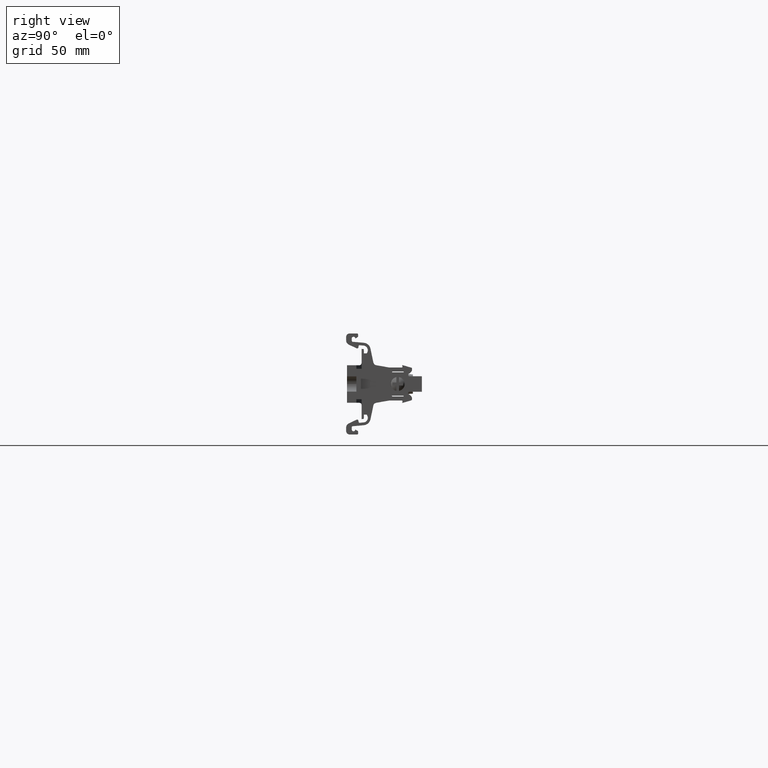
[diagram: clean part render]
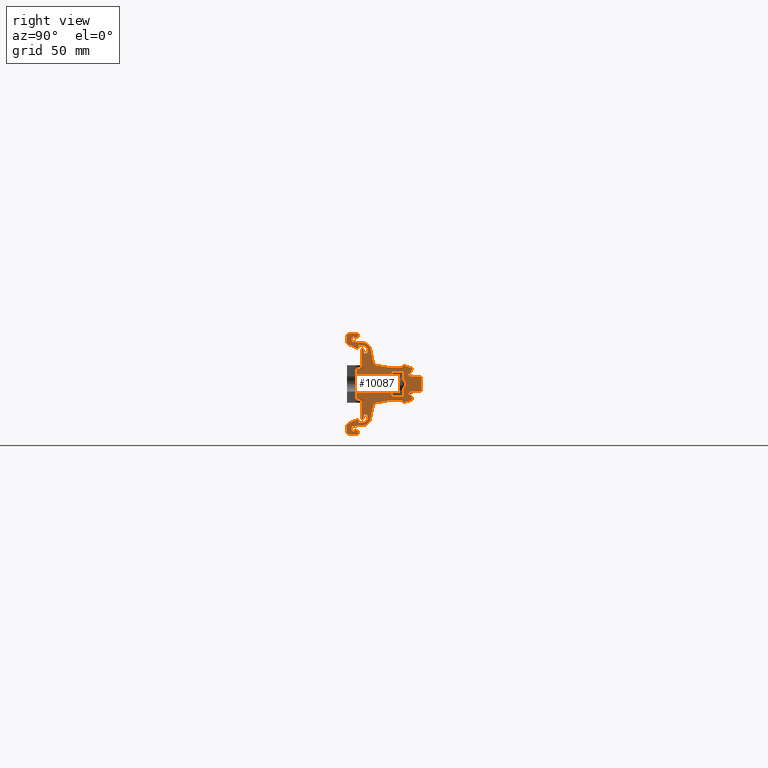
[diagram: same view with one face highlighted and labeled with its STEP entity id]
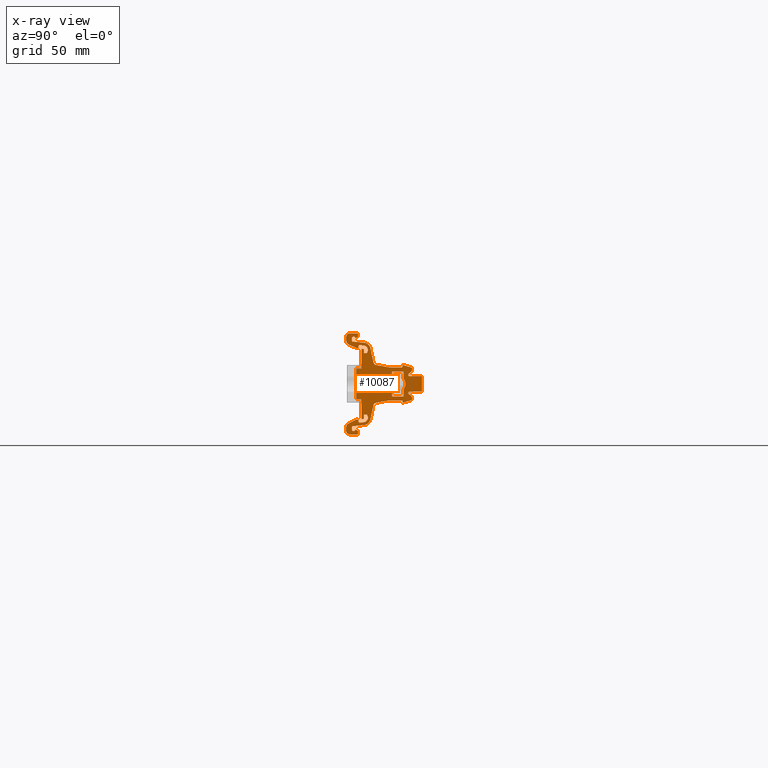
[diagram: x-ray of the same camera — body ghosted, the highlighted face saturated]
A machine part, right view. The second image highlights one B-rep face of the part: STEP entity #10087.
The next image is the same camera in x-ray: the body ghosted, the highlighted face saturated — about 0% of this face is hidden behind the body in this view.
In plain terms, the highlighted planar face has unit normal (-1, 0, -0).
Its self-contained STEP definition (entity closure, byte-faithful):
#276 = DIRECTION ( 'NONE',  ( 1.000000000000000000, -7.897574987183420400E-015, 3.511194208363125300E-015 ) ) ;
#307 = DIRECTION ( 'NONE',  ( 0.0000000000000000000, -1.000000000000000000, 0.0000000000000000000 ) ) ;
#315 = CARTESIAN_POINT ( 'NONE',  ( 232.0473023041759600, 57.21882648293117800, 43.10264998369173400 ) ) ;
#409 = DIRECTION ( 'NONE',  ( -1.000000000000000000, 7.897574987183420400E-015, -3.511194208363125300E-015 ) ) ;
#410 = CARTESIAN_POINT ( 'NONE',  ( 232.0473023041759900, 56.41882648293127300, 35.73063464501128500 ) ) ;
#411 = LINE ( 'NONE', #421, #20926 ) ;
#412 = LINE ( 'NONE', #446, #20916 ) ;
#414 = CARTESIAN_POINT ( 'NONE',  ( 232.0473023041759300, 57.21882648293117800, 33.05264998369278100 ) ) ;
#416 = DIRECTION ( 'NONE',  ( 1.000000000000000000, -7.897574987183420400E-015, 3.511194208363125300E-015 ) ) ;
#417 = CARTESIAN_POINT ( 'NONE',  ( 232.0473023041759900, 62.41882648292837400, 35.73063464501208100 ) ) ;
#418 = DIRECTION ( 'NONE',  ( 7.022388416726556600E-015, 1.938238520643944500E-014, -1.000000000000000000 ) ) ;
#419 = DIRECTION ( 'NONE',  ( 0.0000000000000000000, -1.000000000000000000, 0.0000000000000000000 ) ) ;
#421 = CARTESIAN_POINT ( 'NONE',  ( 232.0473023041759900, 65.53882648293176800, 44.61224998369048200 ) ) ;
#423 = CARTESIAN_POINT ( 'NONE',  ( 232.0473023041758200, 41.98963583581318200, 59.17392918536543800 ) ) ;
#426 = DIRECTION ( 'NONE',  ( 0.0000000000000000000, 1.000000000000000000, 0.0000000000000000000 ) ) ;
#429 = CARTESIAN_POINT ( 'NONE',  ( 232.0473023041759600, 56.91882648293127300, 43.10264998369173400 ) ) ;
#433 = DIRECTION ( 'NONE',  ( 3.390668016491145000E-015, 1.903729276457241200E-030, -1.000000000000000000 ) ) ;
#434 = CARTESIAN_POINT ( 'NONE',  ( 232.0473023041759900, 64.41902670047868200, 41.88664998369058900 ) ) ;
#435 = DIRECTION ( 'NONE',  ( -1.000000000000000000, 7.897574987183420400E-015, -3.511194208363125300E-015 ) ) ;
#436 = DIRECTION ( 'NONE',  ( 1.000000000000000000, -7.897574987183420400E-015, 3.511194208363125300E-015 ) ) ;
#437 = DIRECTION ( 'NONE',  ( 0.0000000000000000000, 1.000000000000000000, 0.0000000000000000000 ) ) ;
#438 = DIRECTION ( 'NONE',  ( 0.0000000000000000000, -1.000000000000000000, 0.0000000000000000000 ) ) ;
#439 = CARTESIAN_POINT ( 'NONE',  ( 232.0473023041759600, 56.41882648293127300, 40.42466532237328600 ) ) ;
#440 = DIRECTION ( 'NONE',  ( -1.000000000000000000, 7.897574987183420400E-015, -3.511194208363125300E-015 ) ) ;
#441 = DIRECTION ( 'NONE',  ( 0.0000000000000000000, -1.000000000000000000, 0.0000000000000000000 ) ) ;
#446 = CARTESIAN_POINT ( 'NONE',  ( 232.0473023041758200, 43.96882648293612300, 49.54146295254293600 ) ) ;
#448 = DIRECTION ( 'NONE',  ( 7.022388416724728800E-015, -9.631644151525075100E-014, -1.000000000000000000 ) ) ;
#449 = DIRECTION ( 'NONE',  ( 1.000000000000000000, -7.897574987183420400E-015, 3.511194208363125300E-015 ) ) ;
#453 = DIRECTION ( 'NONE',  ( 0.0000000000000000000, -1.000000000000000000, 0.0000000000000000000 ) ) ;
#454 = LINE ( 'NONE', #429, #20905 ) ;
#456 = LINE ( 'NONE', #487, #10566 ) ;
#459 = LINE ( 'NONE', #484, #10528 ) ;
#462 = DIRECTION ( 'NONE',  ( 0.0000000000000000000, -1.000000000000000000, 0.0000000000000000000 ) ) ;
#463 = LINE ( 'NONE', #489, #10565 ) ;
#464 = DIRECTION ( 'NONE',  ( -1.000000000000000000, 7.897574987183420400E-015, -3.511194208363125300E-015 ) ) ;
#465 = CARTESIAN_POINT ( 'NONE',  ( 232.0473023041759600, 64.53082648293168700, 44.17999394548488800 ) ) ;
#466 = CARTESIAN_POINT ( 'NONE',  ( 232.0473023041759300, 65.03482648293176300, 51.17200985974386600 ) ) ;
#467 = DIRECTION ( 'NONE',  ( 0.0000000000000000000, -1.000000000000000000, 0.0000000000000000000 ) ) ;
#468 = DIRECTION ( 'NONE',  ( -2.879258993169776800E-015, -0.1736481776669389400, 0.9848077530122064700 ) ) ;
#469 = DIRECTION ( 'NONE',  ( -1.000000000000000000, 7.897574987183420400E-015, -3.511194208363125300E-015 ) ) ;
#470 = DIRECTION ( 'NONE',  ( 0.0000000000000000000, -1.000000000000000000, 0.0000000000000000000 ) ) ;
#471 = LINE ( 'NONE', #477, #10563 ) ;
#473 = DIRECTION ( 'NONE',  ( -1.387778780781410800E-014, -1.000000000000000000, 0.0000000000000000000 ) ) ;
#474 = DIRECTION ( 'NONE',  ( -1.000000000000000000, 7.897574987183420400E-015, -3.511194208363125300E-015 ) ) ;
#476 = DIRECTION ( 'NONE',  ( -8.133701855483220800E-015, -0.9961947123350194400, -0.08715557994613965000 ) ) ;
#477 = CARTESIAN_POINT ( 'NONE',  ( 232.0473023041759300, 61.91882648292827400, 43.40264998369098500 ) ) ;
#478 = DIRECTION ( 'NONE',  ( -3.511194208363125300E-015, 9.328066904212698500E-030, 1.000000000000000000 ) ) ;
#479 = DIRECTION ( 'NONE',  ( 7.897574987183420400E-015, 1.000000000000000000, 6.526769278752017400E-031 ) ) ;
#483 = CARTESIAN_POINT ( 'NONE',  ( 232.0473023041759600, 63.53882648293176800, 44.42354422735518000 ) ) ;
#484 = CARTESIAN_POINT ( 'NONE',  ( 232.0473023041759000, 44.87820380573197800, 23.15543380798028000 ) ) ;
#487 = CARTESIAN_POINT ( 'NONE',  ( 232.0473023041758200, 48.88003733662562700, 47.85295847066451800 ) ) ;
#488 = DIRECTION ( 'NONE',  ( 6.192901322547567800E-015, 0.2031293010246979800, -0.9791519223620088800 ) ) ;
#489 = CARTESIAN_POINT ( 'NONE',  ( 232.0473023041760100, 61.50682648293187800, 45.11624998369043700 ) ) ;
#492 = CARTESIAN_POINT ( 'NONE',  ( 232.0473023041759900, 61.14930040515347500, 45.41624998369103100 ) ) ;
#494 = LINE ( 'NONE', #466, #20906 ) ;
#496 = DIRECTION ( 'NONE',  ( -1.000000000000000000, 7.897574987183420400E-015, -3.511194208363125300E-015 ) ) ;
#497 = CARTESIAN_POINT ( 'NONE',  ( 232.0473023041759900, 65.03482648293176300, 44.61224998369023400 ) ) ;
#499 = LINE ( 'NONE', #511, #10562 ) ;
#500 = DIRECTION ( 'NONE',  ( 1.000000000000000000, -7.897574987183420400E-015, 3.511194211457205400E-015 ) ) ;
#501 = DIRECTION ( 'NONE',  ( 8.673617587638691200E-015, 0.9999999999999850100, 1.731738817295611800E-007 ) ) ;
#503 = LINE ( 'NONE', #557, #10552 ) ;
#504 = DIRECTION ( 'NONE',  ( 3.060780312257525800E-028, 1.938238520643949800E-014, 1.000000000000000000 ) ) ;
#511 = CARTESIAN_POINT ( 'NONE',  ( 232.0473023041759300, 56.91882648293127300, 33.05264998369278100 ) ) ;
#512 = DIRECTION ( 'NONE',  ( 1.000000000000000000, -7.897574987183420400E-015, 3.511194208363125300E-015 ) ) ;
#517 = DIRECTION ( 'NONE',  ( 3.511194208363125300E-015, -4.582757863597410100E-029, -1.000000000000000000 ) ) ;
#519 = LINE ( 'NONE', #541, #10529 ) ;
#520 = CARTESIAN_POINT ( 'NONE',  ( 232.0473023041758200, 50.47768931561257900, 47.59115308380473400 ) ) ;
#521 = DIRECTION ( 'NONE',  ( -1.000000000000000000, 7.897574987183420400E-015, -3.511194208363125300E-015 ) ) ;
#524 = DIRECTION ( 'NONE',  ( 9.532419772735854500E-015, 0.9611011447769712800, -0.2761966500672940500 ) ) ;
#526 = DIRECTION ( 'NONE',  ( 0.0000000000000000000, 1.000000000000000000, 0.0000000000000000000 ) ) ;
#527 = CARTESIAN_POINT ( 'NONE',  ( 232.0473023041759600, 62.41882648292837400, 40.42466532237244100 ) ) ;
#528 = DIRECTION ( 'NONE',  ( 0.0000000000000000000, -1.000000000000000000, 0.0000000000000000000 ) ) ;
#529 = DIRECTION ( 'NONE',  ( -3.059313742856704900E-015, -7.137519723160605700E-030, 1.000000000000000000 ) ) ;
#532 = DIRECTION ( 'NONE',  ( -1.000000000000000000, 7.897574987183420400E-015, -3.511194208363125300E-015 ) ) ;
#534 = DIRECTION ( 'NONE',  ( 8.387904386714133700E-015, 1.000000000000000000, 0.0000000000000000000 ) ) ;
#535 = LINE ( 'NONE', #540, #10567 ) ;
#536 = CARTESIAN_POINT ( 'NONE',  ( 232.0473023041757900, 44.64504681959377300, 52.51835480252273000 ) ) ;
#538 = CARTESIAN_POINT ( 'NONE',  ( 232.0473023041759300, 59.41882648292937600, 38.07764998369224000 ) ) ;
#540 = CARTESIAN_POINT ( 'NONE',  ( 232.0473023041759900, 61.56727615041277300, 46.12424998369043300 ) ) ;
#541 = CARTESIAN_POINT ( 'NONE',  ( 232.0473023041759900, 63.91902670047868200, 42.45486620778882500 ) ) ;
#542 = LINE ( 'NONE', #543, #10576 ) ;
#543 = CARTESIAN_POINT ( 'NONE',  ( 232.0473023041760100, 61.91882648292827400, 32.75264998369358700 ) ) ;
#547 = LINE ( 'NONE', #549, #10520 ) ;
#549 = CARTESIAN_POINT ( 'NONE',  ( 232.0473023041757900, 44.87820380573197800, 52.99986615940423500 ) ) ;
#550 = LINE ( 'NONE', #570, #10537 ) ;
#553 = LINE ( 'NONE', #568, #10540 ) ;
#554 = LINE ( 'NONE', #575, #10526 ) ;
#557 = CARTESIAN_POINT ( 'NONE',  ( 232.0473023041759300, 55.87540409741067300, 45.11625012411862900 ) ) ;
#563 = DIRECTION ( 'NONE',  ( -1.333694460683756300E-014, 1.000000000000000000, -1.491170444317995300E-028 ) ) ;
#567 = DIRECTION ( 'NONE',  ( 8.407067187699695900E-015, 0.9848077443312180900, -0.1736482268992634900 ) ) ;
#568 = CARTESIAN_POINT ( 'NONE',  ( 232.0473023041758700, 43.05277200151572700, 21.48999978488697900 ) ) ;
#569 = CARTESIAN_POINT ( 'NONE',  ( 232.0473023041759000, 49.02563120575397400, 47.21495201310663200 ) ) ;
#570 = CARTESIAN_POINT ( 'NONE',  ( 232.0473023041759900, 61.32908888637767600, 46.12424998369043300 ) ) ;
#572 = DIRECTION ( 'NONE',  ( 8.402104383550485200E-015, 0.9999999999999996700, -2.493654252407339300E-008 ) ) ;
#574 = LINE ( 'NONE', #569, #10551 ) ;
#575 = CARTESIAN_POINT ( 'NONE',  ( 232.0473023041758200, 50.15875241932187800, 46.12425034894923900 ) ) ;
#577 = CARTESIAN_POINT ( 'NONE',  ( 232.0473023041759300, 59.41882648292937600, 38.07764998369224000 ) ) ;
#581 = DIRECTION ( 'NONE',  ( -5.444834368541425100E-015, -0.2508007137987740000, 0.9680387399056019600 ) ) ;
#586 = DIRECTION ( 'NONE',  ( 8.387904386714133700E-015, 1.000000000000000000, 0.0000000000000000000 ) ) ;
#587 = DIRECTION ( 'NONE',  ( -8.745742190550049400E-015, -0.9961947123350194400, 0.08715557994613965000 ) ) ;
#588 = DIRECTION ( 'NONE',  ( 1.000000000000000000, -7.897574987183420400E-015, 3.511194208363125300E-015 ) ) ;
#594 = DIRECTION ( 'NONE',  ( -3.511226112384349400E-015, -4.039727375448119700E-006, 0.9999999999918401900 ) ) ;
#596 = DIRECTION ( 'NONE',  ( 1.000000000000000000, -7.897574987183420400E-015, 3.511194208363125300E-015 ) ) ;
#597 = LINE ( 'NONE', #625, #10543 ) ;
#600 = CARTESIAN_POINT ( 'NONE',  ( 232.0473023041759900, 64.41902670047868200, 42.08361953262028300 ) ) ;
#602 = DIRECTION ( 'NONE',  ( 5.297493611965085800E-015, -0.08716743514127640900, -0.9961936750707121000 ) ) ;
#603 = DIRECTION ( 'NONE',  ( -4.173525295009945800E-015, 0.1736115906440594800, 0.9848142035907279100 ) ) ;
#604 = CARTESIAN_POINT ( 'NONE',  ( 232.0473023041758200, 42.49569613870307400, 43.87215893174838000 ) ) ;
#613 = DIRECTION ( 'NONE',  ( 0.0000000000000000000, -1.000000000000000000, 0.0000000000000000000 ) ) ;
#620 = DIRECTION ( 'NONE',  ( -1.000000000000000000, 7.897574987183420400E-015, -3.511194208363125300E-015 ) ) ;
#625 = CARTESIAN_POINT ( 'NONE',  ( 232.0473023041759000, 44.96882667606732300, 24.19111794963833300 ) ) ;
#628 = LINE ( 'NONE', #635, #10586 ) ;
#629 = DIRECTION ( 'NONE',  ( 0.0000000000000000000, -1.000000000000000000, 0.0000000000000000000 ) ) ;
#630 = DIRECTION ( 'NONE',  ( 7.909228227635307100E-015, 0.9961947123350202200, 0.08715557994613090700 ) ) ;
#633 = CARTESIAN_POINT ( 'NONE',  ( 232.0473023041757600, 38.86598570617562100, 58.17992767327053400 ) ) ;
#634 = LINE ( 'NONE', #604, #10612 ) ;
#635 = CARTESIAN_POINT ( 'NONE',  ( 232.0473023041757600, 42.60328566554502300, 53.69303677530073300 ) ) ;
#637 = LINE ( 'NONE', #663, #10626 ) ;
#638 = LINE ( 'NONE', #666, #10621 ) ;
#639 = LINE ( 'NONE', #650, #10591 ) ;
#640 = LINE ( 'NONE', #677, #10632 ) ;
#642 = CARTESIAN_POINT ( 'NONE',  ( 232.0473023041758200, 45.46882679718117300, 51.26480522291823400 ) ) ;
#643 = DIRECTION ( 'NONE',  ( -1.000000000000000000, 7.897574987183420400E-015, -3.511194211457205400E-015 ) ) ;
#645 = LINE ( 'NONE', #654, #10636 ) ;
#647 = DIRECTION ( 'NONE',  ( 5.009153200072363800E-015, 0.9062916780557625000, 0.4226528058428927800 ) ) ;
#649 = DIRECTION ( 'NONE',  ( -7.022389787476184800E-015, -1.731740200024760200E-007, 0.9999999999999850100 ) ) ;
#650 = CARTESIAN_POINT ( 'NONE',  ( 232.0473023041759300, 44.92394467542107600, 20.44912216233057800 ) ) ;
#651 = DIRECTION ( 'NONE',  ( 1.000000000000000000, -7.897574987183420400E-015, 3.511194205269045200E-015 ) ) ;
#653 = DIRECTION ( 'NONE',  ( -7.559068913072856400E-015, 0.2031293010246979800, 0.9791519223620088800 ) ) ;
#654 = CARTESIAN_POINT ( 'NONE',  ( 232.0473023041759300, 38.52068015480832500, 21.25285254922048500 ) ) ;
#656 = CARTESIAN_POINT ( 'NONE',  ( 232.0473023041757900, 44.96882667606732300, 51.96418201774623900 ) ) ;
#658 = CARTESIAN_POINT ( 'NONE',  ( 232.0473023041759000, 45.46882679718117300, 24.89049474446633100 ) ) ;
#659 = DIRECTION ( 'NONE',  ( -3.631720400235104700E-015, 5.705937481664404100E-029, 1.000000000000000000 ) ) ;
#660 = LINE ( 'NONE', #673, #10643 ) ;
#663 = CARTESIAN_POINT ( 'NONE',  ( 232.0473023041758200, 44.96882679718122900, 51.26480513633124000 ) ) ;
#666 = CARTESIAN_POINT ( 'NONE',  ( 232.0473023041758700, 43.96882648293612300, 26.61383701484158200 ) ) ;
#668 = DIRECTION ( 'NONE',  ( -1.698165312667436100E-015, -0.08716743514127640900, 0.9961936750707121000 ) ) ;
#669 = DIRECTION ( 'NONE',  ( 0.0000000000000000000, 3.041935700370216800E-031, -1.000000000000000000 ) ) ;
#670 = LINE ( 'NONE', #656, #10585 ) ;
#672 = LINE ( 'NONE', #681, #10619 ) ;
#673 = CARTESIAN_POINT ( 'NONE',  ( 232.0473023041757600, 38.52068015480832500, 54.90244741816403700 ) ) ;
#676 = DIRECTION ( 'NONE',  ( 0.0000000000000000000, 0.9999999999999851200, -1.731738780152424300E-007 ) ) ;
#677 = CARTESIAN_POINT ( 'NONE',  ( 232.0473023041758200, 43.96882648293612300, 31.57865108636533000 ) ) ;
#678 = DIRECTION ( 'NONE',  ( 0.0000000000000000000, 0.9999999999999851200, 1.731738780152424300E-007 ) ) ;
#679 = DIRECTION ( 'NONE',  ( -8.006162735728335800E-015, -0.9961947123350145500, -0.08715557994619575800 ) ) ;
#681 = CARTESIAN_POINT ( 'NONE',  ( 232.0473023041759600, 48.88003733662562700, 28.30234149672049800 ) ) ;
#730 = DIRECTION ( 'NONE',  ( 7.977185368120339900E-015, 0.9062916780557625000, -0.4226528058428927800 ) ) ;
#751 = LINE ( 'NONE', #825, #10598 ) ;
#825 = CARTESIAN_POINT ( 'NONE',  ( 232.0473023041760100, 65.03482648293176300, 24.98329010764065200 ) ) ;
#929 = DIRECTION ( 'NONE',  ( 7.897574987183420400E-015, 1.000000000000000000, -2.409903246267930500E-016 ) ) ;
#1058 = CARTESIAN_POINT ( 'NONE',  ( 232.0473023041759300, 59.41882648292937600, 38.07764998369224000 ) ) ;
#1081 = DIRECTION ( 'NONE',  ( 1.000000000000000000, -7.897574987183420400E-015, 3.511194208363125300E-015 ) ) ;
#1082 = DIRECTION ( 'NONE',  ( 8.387904386714133700E-015, 1.000000000000000000, 0.0000000000000000000 ) ) ;
#1817 = DIRECTION ( 'NONE',  ( 1.387778780781313100E-014, 0.9999999999999851200, -1.731738814847284500E-007 ) ) ;
#1824 = DIRECTION ( 'NONE',  ( 1.000000000000000000, -7.897574987183420400E-015, 3.511194205269045200E-015 ) ) ;
#1834 = CARTESIAN_POINT ( 'NONE',  ( 232.0473023041759000, 44.64504681959377300, 23.63694516486183200 ) ) ;
#1988 = EDGE_CURVE ( 'NONE', #20419, #19250, #20945, .T. ) ;
#2046 = EDGE_CURVE ( 'NONE', #19249, #19215, #20944, .T. ) ;
#2049 = EDGE_CURVE ( 'NONE', #19245, #19235, #20912, .T. ) ;
#2051 = EDGE_CURVE ( 'NONE', #19198, #19234, #20914, .T. ) ;
#2052 = EDGE_CURVE ( 'NONE', #20393, #19241, #20936, .T. ) ;
#2056 = EDGE_CURVE ( 'NONE', #19227, #19255, #411, .T. ) ;
#2057 = EDGE_CURVE ( 'NONE', #19250, #19245, #454, .T. ) ;
#2061 = EDGE_CURVE ( 'NONE', #19897, #19187, #412, .T. ) ;
#2063 = EDGE_CURVE ( 'NONE', #19937, #19906, #20907, .T. ) ;
#2072 = EDGE_CURVE ( 'NONE', #19200, #19196, #20971, .T. ) ;
#2076 = EDGE_CURVE ( 'NONE', #19284, #19203, #20970, .T. ) ;
#2079 = EDGE_CURVE ( 'NONE', #19254, #19905, #494, .T. ) ;
#2080 = EDGE_CURVE ( 'NONE', #19229, #19213, #10557, .T. ) ;
#2082 = EDGE_CURVE ( 'NONE', #19229, #19239, #463, .T. ) ;
#2086 = EDGE_CURVE ( 'NONE', #19255, #19284, #10573, .T. ) ;
#2091 = EDGE_CURVE ( 'NONE', #19922, #19954, #459, .T. ) ;
#2097 = EDGE_CURVE ( 'NONE', #19216, #19227, #10561, .T. ) ;
#2099 = EDGE_CURVE ( 'NONE', #19232, #19246, #456, .T. ) ;
#2102 = EDGE_CURVE ( 'NONE', #19201, #20375, #471, .T. ) ;
#2104 = EDGE_CURVE ( 'NONE', #19214, #19238, #10555, .T. ) ;
#2106 = EDGE_CURVE ( 'NONE', #19235, #19234, #10583, .T. ) ;
#2109 = EDGE_CURVE ( 'NONE', #19241, #19198, #499, .T. ) ;
#2111 = EDGE_CURVE ( 'NONE', #19232, #19217, #10530, .T. ) ;
#2117 = EDGE_CURVE ( 'NONE', #9216, #19201, #10549, .T. ) ;
#2120 = EDGE_CURVE ( 'NONE', #19199, #19216, #535, .T. ) ;
#2125 = EDGE_CURVE ( 'NONE', #19196, #19193, #519, .T. ) ;
#2129 = EDGE_CURVE ( 'NONE', #19215, #20371, #542, .T. ) ;
#2135 = EDGE_CURVE ( 'NONE', #19238, #19246, #574, .T. ) ;
#2141 = EDGE_CURVE ( 'NONE', #19214, #19197, #554, .T. ) ;
#2143 = EDGE_CURVE ( 'NONE', #19197, #19213, #503, .T. ) ;
#2146 = EDGE_CURVE ( 'NONE', #19249, #9423, #10559, .T. ) ;
#2152 = EDGE_CURVE ( 'NONE', #19909, #19897, #547, .T. ) ;
#2156 = EDGE_CURVE ( 'NONE', #19239, #19199, #550, .T. ) ;
#2166 = EDGE_CURVE ( 'NONE', #19193, #19203, #10553, .T. ) ;
#2168 = EDGE_CURVE ( 'NONE', #19918, #19908, #553, .T. ) ;
#2170 = EDGE_CURVE ( 'NONE', #19912, #19922, #597, .T. ) ;
#2181 = EDGE_CURVE ( 'NONE', #19955, #19945, #10609, .T. ) ;
#2182 = EDGE_CURVE ( 'NONE', #19944, #19952, #628, .T. ) ;
#2184 = EDGE_CURVE ( 'NONE', #19931, #19937, #634, .T. ) ;
#2198 = EDGE_CURVE ( 'NONE', #20370, #20478, #640, .T. ) ;
#2200 = EDGE_CURVE ( 'NONE', #19254, #19959, #10631, .T. ) ;
#2202 = EDGE_CURVE ( 'NONE', #19910, #19909, #670, .T. ) ;
#2205 = EDGE_CURVE ( 'NONE', #19959, #19910, #637, .T. ) ;
#2207 = EDGE_CURVE ( 'NONE', #19954, #20478, #638, .T. ) ;
#2209 = EDGE_CURVE ( 'NONE', #19956, #19899, #639, .T. ) ;
#2214 = EDGE_CURVE ( 'NONE', #19938, #19951, #645, .T. ) ;
#2219 = EDGE_CURVE ( 'NONE', #19900, #19919, #10638, .T. ) ;
#2221 = EDGE_CURVE ( 'NONE', #19933, #19901, #672, .T. ) ;
#2222 = EDGE_CURVE ( 'NONE', #19930, #19898, #660, .T. ) ;
#2225 = EDGE_CURVE ( 'NONE', #19900, #9102, #751, .T. ) ;
#2241 = EDGE_CURVE ( 'NONE', #19948, #9086, #22591, .T. ) ;
#2242 = EDGE_CURVE ( 'NONE', #19919, #19912, #22586, .T. ) ;
#2246 = EDGE_CURVE ( 'NONE', #19247, #19244, #10589, .T. ) ;
#2249 = EDGE_CURVE ( 'NONE', #19898, #19944, #10594, .T. ) ;
#2251 = EDGE_CURVE ( 'NONE', #19952, #19948, #10616, .T. ) ;
#2255 = EDGE_CURVE ( 'NONE', #19217, #19247, #22605, .T. ) ;
#2257 = EDGE_CURVE ( 'NONE', #19240, #19228, #22583, .T. ) ;
#2259 = EDGE_CURVE ( 'NONE', #20382, #19187, #22592, .T. ) ;
#2264 = EDGE_CURVE ( 'NONE', #19939, #19930, #10629, .T. ) ;
#2266 = EDGE_CURVE ( 'NONE', #19212, #19240, #10646, .T. ) ;
#2270 = EDGE_CURVE ( 'NONE', #19228, #19931, #10588, .T. ) ;
#2272 = EDGE_CURVE ( 'NONE', #9132, #19905, #10593, .T. ) ;
#2281 = EDGE_CURVE ( 'NONE', #19945, #19939, #22623, .T. ) ;
#2283 = EDGE_CURVE ( 'NONE', #19934, #19943, #10608, .T. ) ;
#2285 = EDGE_CURVE ( 'NONE', #19244, #19212, #22646, .T. ) ;
#2294 = EDGE_CURVE ( 'NONE', #19906, #19955, #22691, .T. ) ;
#2301 = EDGE_CURVE ( 'NONE', #19903, #19940, #10656, .T. ) ;
#2303 = EDGE_CURVE ( 'NONE', #19936, #19921, #10658, .T. ) ;
#2305 = EDGE_CURVE ( 'NONE', #19914, #19932, #10650, .T. ) ;
#2308 = EDGE_CURVE ( 'NONE', #19958, #19949, #22687, .T. ) ;
#2311 = EDGE_CURVE ( 'NONE', #19936, #19924, #22696, .T. ) ;
#2315 = EDGE_CURVE ( 'NONE', #19899, #19953, #10546, .T. ) ;
#2317 = EDGE_CURVE ( 'NONE', #19941, #19927, #25427, .T. ) ;
#2319 = EDGE_CURVE ( 'NONE', #19951, #19904, #25390, .T. ) ;
#2321 = EDGE_CURVE ( 'NONE', #19932, #19934, #22717, .T. ) ;
#2337 = EDGE_CURVE ( 'NONE', #19907, #19942, #22719, .T. ) ;
#2338 = EDGE_CURVE ( 'NONE', #19913, #19918, #25421, .T. ) ;
#2343 = EDGE_CURVE ( 'NONE', #19942, #19902, #25396, .T. ) ;
#2345 = EDGE_CURVE ( 'NONE', #19908, #9154, #25377, .T. ) ;
#2347 = EDGE_CURVE ( 'NONE', #19994, #19960, #25392, .T. ) ;
#2348 = EDGE_CURVE ( 'NONE', #19200, #19995, #22707, .T. ) ;
#2355 = EDGE_CURVE ( 'NONE', #19971, #19995, #22786, .T. ) ;
#2361 = EDGE_CURVE ( 'NONE', #19904, #19913, #22770, .T. ) ;
#2363 = EDGE_CURVE ( 'NONE', #19986, #19980, #25423, .T. ) ;
#2365 = EDGE_CURVE ( 'NONE', #19958, #19950, #25414, .T. ) ;
#2367 = EDGE_CURVE ( 'NONE', #19940, #19941, #22782, .T. ) ;
#2374 = EDGE_CURVE ( 'NONE', #19928, #19938, #25415, .T. ) ;
#2376 = EDGE_CURVE ( 'NONE', #19924, #19907, #22823, .T. ) ;
#2377 = EDGE_CURVE ( 'NONE', #19950, #19901, #22813, .T. ) ;
#2381 = EDGE_CURVE ( 'NONE', #19902, #19993, #22826, .T. ) ;
#2383 = EDGE_CURVE ( 'NONE', #19993, #19994, #25378, .T. ) ;
#2385 = EDGE_CURVE ( 'NONE', #19929, #19960, #25394, .T. ) ;
#2388 = EDGE_CURVE ( 'NONE', #19980, #19929, #22838, .T. ) ;
#2392 = EDGE_CURVE ( 'NONE', #19986, #19971, #22835, .T. ) ;
#2398 = EDGE_CURVE ( 'NONE', #19949, #19921, #22840, .T. ) ;
#2401 = EDGE_CURVE ( 'NONE', #19953, #19914, #22819, .T. ) ;
#2403 = EDGE_CURVE ( 'NONE', #19927, #19928, #22830, .T. ) ;
#2405 = EDGE_CURVE ( 'NONE', #19943, #19903, #22814, .T. ) ;
#2410 = EDGE_CURVE ( 'NONE', #19933, #19956, #25373, .T. ) ;
#2520 = CARTESIAN_POINT ( 'NONE',  ( 232.0473023041757900, 44.64504681959377300, 52.51835480252273000 ) ) ;
#2535 = DIRECTION ( 'NONE',  ( 1.387778780781313100E-014, 0.9999999999999851200, 1.731738814847284500E-007 ) ) ;
#2551 = DIRECTION ( 'NONE',  ( -1.000000000000000000, 7.897574987183420400E-015, -3.511194211457205400E-015 ) ) ;
#2748 = CIRCLE ( 'NONE', #2774, 2.000000000000191000 ) ;
#2774 = AXIS2_PLACEMENT_3D ( 'NONE', #2520, #2551, #2535 ) ;
#2822 = CIRCLE ( 'NONE', #2826, 3.308999999999028100 ) ;
#2826 = AXIS2_PLACEMENT_3D ( 'NONE', #1058, #1081, #1082 ) ;
#5457 = PLANE ( 'NONE',  #12510 ) ;
#5459 = FACE_BOUND ( 'NONE', #19343, .T. ) ;
#5461 = DIRECTION ( 'NONE',  ( -7.897574987183420400E-015, -1.000000000000000000, 0.0000000000000000000 ) ) ;
#5478 = DIRECTION ( 'NONE',  ( -1.000000000000000000, 7.897574987183420400E-015, -3.511194208363125300E-015 ) ) ;
#5491 = FACE_OUTER_BOUND ( 'NONE', #19381, .T. ) ;
#5498 = CARTESIAN_POINT ( 'NONE',  ( 232.0473023041759900, 65.03482648293176300, 44.61224998369023400 ) ) ;
#6652 = EDGE_CURVE ( 'NONE', #9154, #9102, #7552, .T. ) ;
#6744 = EDGE_CURVE ( 'NONE', #9086, #9132, #2748, .T. ) ;
#6813 = EDGE_CURVE ( 'NONE', #9423, #9216, #2822, .T. ) ;
#7552 = CIRCLE ( 'NONE', #7576, 2.000000000000191000 ) ;
#7576 = AXIS2_PLACEMENT_3D ( 'NONE', #1834, #1824, #1817 ) ;
#7732 = CARTESIAN_POINT ( 'NONE',  ( 232.0473023041759300, 55.87540409741067300, 45.11625012411862900 ) ) ;
#7733 = CARTESIAN_POINT ( 'NONE',  ( 232.0473023041759900, 64.41902670047856800, 41.38664998369044000 ) ) ;
#7734 = CARTESIAN_POINT ( 'NONE',  ( 232.0473023041760100, 56.91882648293127300, 35.73063464501128500 ) ) ;
#7735 = CARTESIAN_POINT ( 'NONE',  ( 232.0473023041759900, 61.91882648292827400, 35.73063464501208100 ) ) ;
#7736 = CARTESIAN_POINT ( 'NONE',  ( 232.0473023041759600, 65.08287282210936600, 45.11395462717343500 ) ) ;
#7744 = CARTESIAN_POINT ( 'NONE',  ( 232.0473023041758200, 43.96882648293612300, 47.07664888101903200 ) ) ;
#7754 = CARTESIAN_POINT ( 'NONE',  ( 232.0473023041759900, 63.91902670047868200, 42.08361953262028300 ) ) ;
#7755 = CARTESIAN_POINT ( 'NONE',  ( 232.0473023041759600, 61.91882648292827400, 40.42466532237244100 ) ) ;
#7762 = CARTESIAN_POINT ( 'NONE',  ( 232.0473023041759900, 61.56727615041277300, 46.12424998369043300 ) ) ;
#7769 = CARTESIAN_POINT ( 'NONE',  ( 232.0473023041759900, 63.91902670047868200, 41.88664998369058900 ) ) ;
#7771 = CARTESIAN_POINT ( 'NONE',  ( 232.0473023041759900, 64.24298665696926500, 42.55160447156718100 ) ) ;
#7786 = CARTESIAN_POINT ( 'NONE',  ( 232.0473023041757900, 39.76324211793747300, 57.53059811375933900 ) ) ;
#7789 = CARTESIAN_POINT ( 'NONE',  ( 232.0473023041759900, 61.14930040515347500, 45.11624999260583700 ) ) ;
#7790 = CARTESIAN_POINT ( 'NONE',  ( 232.0473023041758200, 50.21721697526347600, 46.11394146730793200 ) ) ;
#7793 = CARTESIAN_POINT ( 'NONE',  ( 232.0473023041758700, 42.73118106645492300, 21.73677472139478100 ) ) ;
#7795 = CARTESIAN_POINT ( 'NONE',  ( 232.0473023041759600, 56.81263063100146800, 40.11657719705403500 ) ) ;
#7799 = CARTESIAN_POINT ( 'NONE',  ( 232.0473023041760100, 61.44474273105717500, 45.46834443699113100 ) ) ;
#7800 = CARTESIAN_POINT ( 'NONE',  ( 232.0473023041759900, 56.81263063100146800, 36.03872277033048000 ) ) ;
#7801 = CARTESIAN_POINT ( 'NONE',  ( 232.0473023041759000, 49.02563120575397400, 47.21495201310663200 ) ) ;
#7802 = CARTESIAN_POINT ( 'NONE',  ( 232.0473023041759900, 62.02502233485797900, 36.03872277033113400 ) ) ;
#7804 = CARTESIAN_POINT ( 'NONE',  ( 232.0473023041759000, 44.81935797948587900, 21.64455574019163500 ) ) ;
#7806 = CARTESIAN_POINT ( 'NONE',  ( 232.0473023041759000, 42.49563432371923000, 16.98136991075148200 ) ) ;
#7808 = CARTESIAN_POINT ( 'NONE',  ( 232.0473023041757000, 40.21966716098877700, 56.11774798297333400 ) ) ;
#7809 = CARTESIAN_POINT ( 'NONE',  ( 232.0473023041759900, 65.53882648293176800, 44.17999394548488800 ) ) ;
#7810 = CARTESIAN_POINT ( 'NONE',  ( 232.0473023041760400, 65.53882648293176800, 31.54304998369403300 ) ) ;
#7811 = CARTESIAN_POINT ( 'NONE',  ( 232.0473023041757900, 44.87820380573197800, 52.99986615940423500 ) ) ;
#7812 = CARTESIAN_POINT ( 'NONE',  ( 232.0473023041759000, 44.96882667606732300, 24.19111794963833300 ) ) ;
#7815 = CARTESIAN_POINT ( 'NONE',  ( 232.0473023041759000, 44.97751323073556800, 24.98329010764065900 ) ) ;
#7817 = CARTESIAN_POINT ( 'NONE',  ( 232.0473023041757600, 43.96882648293612300, 53.07942621626534000 ) ) ;
#7818 = CARTESIAN_POINT ( 'NONE',  ( 232.0473023041758400, 39.76324211793747300, 18.62470185362528200 ) ) ;
#7824 = CARTESIAN_POINT ( 'NONE',  ( 232.0473023041758200, 41.28123955800287300, 57.53060234232283700 ) ) ;
#7825 = CARTESIAN_POINT ( 'NONE',  ( 232.0473023041759900, 56.91882648293127300, 40.42466532237323700 ) ) ;
#7827 = CARTESIAN_POINT ( 'NONE',  ( 232.0473023041759600, 56.91882648293127300, 43.10264998369173400 ) ) ;
#7828 = CARTESIAN_POINT ( 'NONE',  ( 232.0473023041758400, 47.79345559758117200, 53.09064989785783000 ) ) ;
#7829 = CARTESIAN_POINT ( 'NONE',  ( 232.0473023041758200, 44.97751323073557500, 51.17200985974385900 ) ) ;
#7830 = CARTESIAN_POINT ( 'NONE',  ( 232.0473023041759900, 65.53882648293176800, 44.61224998369048200 ) ) ;
#7833 = CARTESIAN_POINT ( 'NONE',  ( 232.0473023041758200, 48.95920517768886500, 47.47134270486775200 ) ) ;
#7835 = CARTESIAN_POINT ( 'NONE',  ( 232.0473023041758700, 42.60328566554502300, 22.46226319208383200 ) ) ;
#7836 = CARTESIAN_POINT ( 'NONE',  ( 232.0473023041760100, 61.56727615041277300, 30.03104998369407900 ) ) ;
#7837 = CARTESIAN_POINT ( 'NONE',  ( 232.0473023041758200, 42.24263066486562200, 58.08564427782223300 ) ) ;
#7839 = CARTESIAN_POINT ( 'NONE',  ( 232.0473023041757600, 44.92394467542107600, 55.70617780505403300 ) ) ;
#7840 = CARTESIAN_POINT ( 'NONE',  ( 232.0473023041757300, 41.89955216082832800, 53.32669673159483600 ) ) ;
#7841 = CARTESIAN_POINT ( 'NONE',  ( 232.0473023041759900, 61.32908888637767600, 46.12424998369043300 ) ) ;
#7842 = CARTESIAN_POINT ( 'NONE',  ( 232.0473023041759900, 65.37290098875067200, 43.62594112611668600 ) ) ;
#7843 = CARTESIAN_POINT ( 'NONE',  ( 232.0473023041757900, 44.96882667606732300, 51.96418201774623900 ) ) ;
#7845 = CARTESIAN_POINT ( 'NONE',  ( 232.0473023041757900, 46.12401784535946100, 51.17200985974386600 ) ) ;
#7847 = CARTESIAN_POINT ( 'NONE',  ( 232.0473023041757900, 39.76324495096427800, 56.61584379062293200 ) ) ;
#7848 = CARTESIAN_POINT ( 'NONE',  ( 232.0473023041759000, 48.95920517768855300, 28.68395726251564800 ) ) ;
#7850 = CARTESIAN_POINT ( 'NONE',  ( 232.0473023041758700, 43.05277200151572700, 21.48999978488697900 ) ) ;
#7851 = CARTESIAN_POINT ( 'NONE',  ( 232.0473023041758700, 44.96882679718122900, 24.89049483105328200 ) ) ;
#7853 = CARTESIAN_POINT ( 'NONE',  ( 232.0473023041758200, 41.98963461062712100, 59.67992767327053400 ) ) ;
#7854 = CARTESIAN_POINT ( 'NONE',  ( 232.0473023041759300, 56.91882648293127300, 33.05264998369278100 ) ) ;
#7856 = CARTESIAN_POINT ( 'NONE',  ( 232.0473023041758400, 40.21966716098877700, 20.03755198441118100 ) ) ;
#7857 = CARTESIAN_POINT ( 'NONE',  ( 232.0473023041759300, 55.87540409741067300, 31.03904984326592900 ) ) ;
#7858 = CARTESIAN_POINT ( 'NONE',  ( 232.0473023041758200, 42.49563432371923000, 59.17393005663313200 ) ) ;
#7865 = CARTESIAN_POINT ( 'NONE',  ( 232.0473023041760400, 65.08287282210936600, 31.04134534021112700 ) ) ;
#7868 = CARTESIAN_POINT ( 'NONE',  ( 232.0473023041760100, 63.91902670047868200, 34.26864998369398300 ) ) ;
#7869 = CARTESIAN_POINT ( 'NONE',  ( 232.0473023041760100, 61.14930040515347500, 31.03904997477868100 ) ) ;
#7870 = CARTESIAN_POINT ( 'NONE',  ( 232.0473023041758400, 38.86598570617557200, 16.47537229411403500 ) ) ;
#7871 = CARTESIAN_POINT ( 'NONE',  ( 232.0473023041759000, 42.24263066486562200, 18.06965568956228200 ) ) ;
#7872 = CARTESIAN_POINT ( 'NONE',  ( 232.0473023041758700, 43.96882648293612300, 23.07587375111918600 ) ) ;
#7873 = CARTESIAN_POINT ( 'NONE',  ( 232.0473023041759300, 50.21721697526347600, 30.04135850007658000 ) ) ;
#7879 = CARTESIAN_POINT ( 'NONE',  ( 232.0473023041758400, 39.76324495096427800, 19.53945617676158300 ) ) ;
#7883 = CARTESIAN_POINT ( 'NONE',  ( 232.0473023041759300, 49.02563120575397400, 28.94034795427792900 ) ) ;
#7884 = CARTESIAN_POINT ( 'NONE',  ( 232.0473023041760100, 64.41902670047856800, 34.76864998369413200 ) ) ;
#7886 = CARTESIAN_POINT ( 'NONE',  ( 232.0473023041760100, 61.44474273105717500, 30.68695553039343300 ) ) ;
#7887 = CARTESIAN_POINT ( 'NONE',  ( 232.0473023041758200, 37.36598570617562100, 17.97537235587703100 ) ) ;
#7888 = CARTESIAN_POINT ( 'NONE',  ( 232.0473023041758700, 41.28123955800287300, 18.62469762506173200 ) ) ;
#7889 = CARTESIAN_POINT ( 'NONE',  ( 232.0473023041757600, 43.05277200151572700, 54.66530018249753900 ) ) ;
#7890 = CARTESIAN_POINT ( 'NONE',  ( 232.0473023041757600, 42.73118106645492300, 54.41852524598974100 ) ) ;
#7891 = CARTESIAN_POINT ( 'NONE',  ( 232.0473023041759300, 38.52068015480832500, 21.25285254922048500 ) ) ;
#7892 = CARTESIAN_POINT ( 'NONE',  ( 232.0473023041759000, 42.49563694983327600, 17.63144197736713200 ) ) ;
#7893 = CARTESIAN_POINT ( 'NONE',  ( 232.0473023041757600, 42.60328566554502300, 53.69303677530073300 ) ) ;
#7894 = CARTESIAN_POINT ( 'NONE',  ( 232.0473023041757600, 38.52068015480832500, 54.90244741816403700 ) ) ;
#7896 = CARTESIAN_POINT ( 'NONE',  ( 232.0473023041760100, 47.79345559758117200, 23.06465006952717900 ) ) ;
#7897 = CARTESIAN_POINT ( 'NONE',  ( 232.0473023041758400, 41.89955216082832800, 22.82860323578973200 ) ) ;
#7898 = CARTESIAN_POINT ( 'NONE',  ( 232.0473023041758200, 44.96882679718122900, 51.26480513633124000 ) ) ;
#7903 = CARTESIAN_POINT ( 'NONE',  ( 232.0473023041760100, 69.74082521647596900, 34.76864998369509200 ) ) ;
#7905 = CARTESIAN_POINT ( 'NONE',  ( 232.0473023041760100, 61.32908888637767600, 30.03104998369407900 ) ) ;
#7906 = CARTESIAN_POINT ( 'NONE',  ( 232.0473023041759000, 41.98963461062712100, 16.47537229411403500 ) ) ;
#7910 = CARTESIAN_POINT ( 'NONE',  ( 232.0473023041759300, 44.92394467542107600, 20.44912216233057800 ) ) ;
#7911 = CARTESIAN_POINT ( 'NONE',  ( 232.0473023041758200, 42.49563694983327600, 58.52385799001743300 ) ) ;
#7912 = CARTESIAN_POINT ( 'NONE',  ( 232.0473023041757600, 38.86598570617557200, 59.67992767327053400 ) ) ;
#7915 = CARTESIAN_POINT ( 'NONE',  ( 232.0473023041757600, 37.36598576649337400, 56.71503042792804200 ) ) ;
#7916 = CARTESIAN_POINT ( 'NONE',  ( 232.0473023041759000, 44.87820380573197800, 23.15543380798028000 ) ) ;
#7917 = CARTESIAN_POINT ( 'NONE',  ( 232.0473023041760100, 64.24298665696926500, 33.60369549581733400 ) ) ;
#7918 = CARTESIAN_POINT ( 'NONE',  ( 232.0473023041759000, 37.36598576649337400, 19.44026953945653000 ) ) ;
#7919 = CARTESIAN_POINT ( 'NONE',  ( 232.0473023041760100, 63.91902670047868200, 34.07168043476428200 ) ) ;
#7920 = CARTESIAN_POINT ( 'NONE',  ( 232.0473023041757300, 37.36598570617562100, 58.17992761150753000 ) ) ;
#7937 = CARTESIAN_POINT ( 'NONE',  ( 232.0473023041760100, 69.74082521647596900, 41.38664998368991400 ) ) ;
#7940 = CARTESIAN_POINT ( 'NONE',  ( 232.0473023041760400, 65.37290098875067200, 32.52935884126788600 ) ) ;
#7982 = CARTESIAN_POINT ( 'NONE',  ( 232.0473023041760400, 65.53882648293176800, 31.97530602189963700 ) ) ;
#9086 = VERTEX_POINT ( 'NONE', #18579 ) ;
#9102 = VERTEX_POINT ( 'NONE', #18615 ) ;
#9132 = VERTEX_POINT ( 'NONE', #18605 ) ;
#9154 = VERTEX_POINT ( 'NONE', #18591 ) ;
#9216 = VERTEX_POINT ( 'NONE', #18684 ) ;
#9236 = VERTEX_POINT ( 'NONE', #18692 ) ;
#9423 = VERTEX_POINT ( 'NONE', #18765 ) ;
#10087 = ADVANCED_FACE ( 'NONE', ( #5491, #5459 ), #5457, .F. ) ;
#10520 = VECTOR ( 'NONE', #587, 1000.000000000000000 ) ;
#10521 = AXIS2_PLACEMENT_3D ( 'NONE', #465, #469, #470 ) ;
#10522 = AXIS2_PLACEMENT_3D ( 'NONE', #520, #521, #526 ) ;
#10526 = VECTOR ( 'NONE', #567, 1000.000000000000100 ) ;
#10527 = AXIS2_PLACEMENT_3D ( 'NONE', #538, #512, #534 ) ;
#10528 = VECTOR ( 'NONE', #476, 1000.000000000000000 ) ;
#10529 = VECTOR ( 'NONE', #529, 1000.000000000000000 ) ;
#10530 = CIRCLE ( 'NONE', #10575, 3.199999923352062800 ) ;
#10537 = VECTOR ( 'NONE', #563, 1000.000000000000000 ) ;
#10540 = VECTOR ( 'NONE', #630, 1000.000000000000000 ) ;
#10541 = AXIS2_PLACEMENT_3D ( 'NONE', #600, #620, #613 ) ;
#10542 = AXIS2_PLACEMENT_3D ( 'NONE', #527, #532, #528 ) ;
#10543 = VECTOR ( 'NONE', #602, 999.9999999999998900 ) ;
#10546 = CIRCLE ( 'NONE', #10600, 0.5000000000000004400 ) ;
#10547 = VECTOR ( 'NONE', #22683, 1000.000000000000100 ) ;
#10549 = CIRCLE ( 'NONE', #10542, 0.5000000000000143200 ) ;
#10551 = VECTOR ( 'NONE', #581, 999.9999999999998900 ) ;
#10552 = VECTOR ( 'NONE', #572, 1000.000000000000100 ) ;
#10553 = CIRCLE ( 'NONE', #10541, 0.5000000000000004400 ) ;
#10555 = CIRCLE ( 'NONE', #10522, 1.500000000000056800 ) ;
#10557 = CIRCLE ( 'NONE', #10560, 0.3000000000000016500 ) ;
#10559 = CIRCLE ( 'NONE', #10581, 3.308999999999028100 ) ;
#10560 = AXIS2_PLACEMENT_3D ( 'NONE', #492, #464, #467 ) ;
#10561 = CIRCLE ( 'NONE', #10580, 0.5040000000009620100 ) ;
#10562 = VECTOR ( 'NONE', #504, 1000.000000000000000 ) ;
#10563 = VECTOR ( 'NONE', #478, 1000.000000000000000 ) ;
#10565 = VECTOR ( 'NONE', #468, 1000.000000000000100 ) ;
#10566 = VECTOR ( 'NONE', #488, 1000.000000000000100 ) ;
#10567 = VECTOR ( 'NONE', #524, 1000.000000000000000 ) ;
#10573 = CIRCLE ( 'NONE', #10521, 1.008000000000022700 ) ;
#10575 = AXIS2_PLACEMENT_3D ( 'NONE', #536, #500, #501 ) ;
#10576 = VECTOR ( 'NONE', #517, 1000.000000000000000 ) ;
#10580 = AXIS2_PLACEMENT_3D ( 'NONE', #497, #474, #462 ) ;
#10581 = AXIS2_PLACEMENT_3D ( 'NONE', #577, #588, #586 ) ;
#10583 = CIRCLE ( 'NONE', #10527, 3.308999999999028100 ) ;
#10585 = VECTOR ( 'NONE', #668, 999.9999999999998900 ) ;
#10586 = VECTOR ( 'NONE', #603, 999.9999999999998900 ) ;
#10587 = VECTOR ( 'NONE', #22580, 1000.000000000000000 ) ;
#10588 = CIRCLE ( 'NONE', #10590, 0.5059989537840523500 ) ;
#10589 = CIRCLE ( 'NONE', #10618, 0.5000000000000004400 ) ;
#10590 = AXIS2_PLACEMENT_3D ( 'NONE', #22618, #22661, #22642 ) ;
#10591 = VECTOR ( 'NONE', #679, 1000.000000000000000 ) ;
#10593 = CIRCLE ( 'NONE', #10599, 2.000000000000191000 ) ;
#10594 = CIRCLE ( 'NONE', #10639, 0.5000000000000010000 ) ;
#10597 = VECTOR ( 'NONE', #22603, 1000.000000000000000 ) ;
#10598 = VECTOR ( 'NONE', #929, 1000.000000000000000 ) ;
#10599 = AXIS2_PLACEMENT_3D ( 'NONE', #22644, #22652, #22635 ) ;
#10600 = AXIS2_PLACEMENT_3D ( 'NONE', #22672, #22730, #22712 ) ;
#10601 = VECTOR ( 'NONE', #22590, 1000.000000000000100 ) ;
#10608 = CIRCLE ( 'NONE', #10623, 0.5059989537840523500 ) ;
#10609 = CIRCLE ( 'NONE', #10641, 1.500000000000001300 ) ;
#10612 = VECTOR ( 'NONE', #594, 1000.000000000000100 ) ;
#10613 = AXIS2_PLACEMENT_3D ( 'NONE', #658, #651, #676 ) ;
#10616 = CIRCLE ( 'NONE', #10625, 0.3000000000002351300 ) ;
#10618 = AXIS2_PLACEMENT_3D ( 'NONE', #22575, #22574, #22581 ) ;
#10619 = VECTOR ( 'NONE', #653, 1000.000000000000100 ) ;
#10621 = VECTOR ( 'NONE', #659, 1000.000000000000000 ) ;
#10622 = VECTOR ( 'NONE', #22607, 1000.000000000000000 ) ;
#10623 = AXIS2_PLACEMENT_3D ( 'NONE', #22630, #22632, #22653 ) ;
#10624 = AXIS2_PLACEMENT_3D ( 'NONE', #22633, #22639, #22662 ) ;
#10625 = AXIS2_PLACEMENT_3D ( 'NONE', #22573, #22597, #22606 ) ;
#10626 = VECTOR ( 'NONE', #649, 1000.000000000000000 ) ;
#10627 = AXIS2_PLACEMENT_3D ( 'NONE', #642, #643, #678 ) ;
#10629 = CIRCLE ( 'NONE', #10645, 1.999999999999879000 ) ;
#10630 = VECTOR ( 'NONE', #22638, 1000.000000000000000 ) ;
#10631 = CIRCLE ( 'NONE', #10627, 0.5000000000001605400 ) ;
#10632 = VECTOR ( 'NONE', #669, 1000.000000000000000 ) ;
#10636 = VECTOR ( 'NONE', #647, 1000.000000000000000 ) ;
#10638 = CIRCLE ( 'NONE', #10613, 0.5000000000001605400 ) ;
#10639 = AXIS2_PLACEMENT_3D ( 'NONE', #22609, #22576, #22577 ) ;
#10640 = VECTOR ( 'NONE', #22626, 1000.000000000000000 ) ;
#10641 = AXIS2_PLACEMENT_3D ( 'NONE', #633, #596, #629 ) ;
#10643 = VECTOR ( 'NONE', #730, 1000.000000000000000 ) ;
#10645 = AXIS2_PLACEMENT_3D ( 'NONE', #22631, #22627, #22658 ) ;
#10646 = CIRCLE ( 'NONE', #10624, 0.7589987200356460600 ) ;
#10649 = VECTOR ( 'NONE', #22686, 1000.000000000000000 ) ;
#10650 = CIRCLE ( 'NONE', #10651, 0.7589987200356460600 ) ;
#10651 = AXIS2_PLACEMENT_3D ( 'NONE', #22695, #22693, #22682 ) ;
#10656 = CIRCLE ( 'NONE', #10660, 0.5059984879067919200 ) ;
#10658 = CIRCLE ( 'NONE', #10661, 0.3000000000000016500 ) ;
#10660 = AXIS2_PLACEMENT_3D ( 'NONE', #22689, #22679, #22673 ) ;
#10661 = AXIS2_PLACEMENT_3D ( 'NONE', #22675, #22677, #22678 ) ;
#10662 = VECTOR ( 'NONE', #22668, 1000.000000000000100 ) ;
#10663 = VECTOR ( 'NONE', #22659, 1000.000000000000000 ) ;
#12493 = LINE ( 'NONE', #12541, #21539 ) ;
#12510 = AXIS2_PLACEMENT_3D ( 'NONE', #5498, #5478, #5461 ) ;
#12511 = DIRECTION ( 'NONE',  ( -8.139411055335619400E-015, -1.000000000000000000, -1.582186043266455000E-013 ) ) ;
#12541 = CARTESIAN_POINT ( 'NONE',  ( 232.0473023041760100, 62.65701656017486000, 32.75264998369368600 ) ) ;
#12546 = CARTESIAN_POINT ( 'NONE',  ( 232.0473023041758200, 41.74082521647572000, 31.57865108636544700 ) ) ;
#12554 = DIRECTION ( 'NONE',  ( 3.511194208363125300E-015, 0.0000000000000000000, -1.000000000000000000 ) ) ;
#12575 = LINE ( 'NONE', #12546, #21559 ) ;
#12599 = LINE ( 'NONE', #12619, #21561 ) ;
#12619 = CARTESIAN_POINT ( 'NONE',  ( 232.0473023041758400, 43.96882648293598800, 31.57865108636538700 ) ) ;
#12662 = DIRECTION ( 'NONE',  ( 7.897574987183420400E-015, 1.000000000000000000, 0.0000000000000000000 ) ) ;
#14335 = EDGE_CURVE ( 'NONE', #20375, #20419, #14791, .T. ) ;
#14350 = EDGE_CURVE ( 'NONE', #20342, #9236, #14841, .T. ) ;
#14351 = EDGE_CURVE ( 'NONE', #20382, #20342, #14809, .T. ) ;
#14368 = EDGE_CURVE ( 'NONE', #20371, #20393, #12493, .T. ) ;
#14370 = EDGE_CURVE ( 'NONE', #9236, #20366, #12575, .T. ) ;
#14373 = EDGE_CURVE ( 'NONE', #20366, #20370, #12599, .T. ) ;
#14791 = LINE ( 'NONE', #14793, #21552 ) ;
#14792 = DIRECTION ( 'NONE',  ( -8.139411055336730100E-015, -1.000000000000000000, 1.582186043266455000E-013 ) ) ;
#14793 = CARTESIAN_POINT ( 'NONE',  ( 232.0473023041759300, 62.65701656017486000, 43.40264998369082900 ) ) ;
#14809 = LINE ( 'NONE', #14829, #21442 ) ;
#14810 = DIRECTION ( 'NONE',  ( 3.511194208363125300E-015, 0.0000000000000000000, -1.000000000000000000 ) ) ;
#14829 = CARTESIAN_POINT ( 'NONE',  ( 232.0473023041757900, 41.74082521647558500, 44.57664888101918200 ) ) ;
#14831 = DIRECTION ( 'NONE',  ( -7.897574987183420400E-015, -1.000000000000000000, 0.0000000000000000000 ) ) ;
#14841 = LINE ( 'NONE', #14842, #21511 ) ;
#14842 = CARTESIAN_POINT ( 'NONE',  ( 232.0473023041758200, 41.74082521647572000, 31.57865108636544700 ) ) ;
#16669 = ORIENTED_EDGE ( 'NONE', *, *, #2072, .T. ) ;
#16685 = ORIENTED_EDGE ( 'NONE', *, *, #2348, .F. ) ;
#16691 = ORIENTED_EDGE ( 'NONE', *, *, #2125, .T. ) ;
#18579 = CARTESIAN_POINT ( 'NONE',  ( 232.0473023041757900, 44.81935797948587900, 54.51074422719293700 ) ) ;
#18591 = CARTESIAN_POINT ( 'NONE',  ( 232.0473023041759300, 46.64504681959393700, 23.63694481851406000 ) ) ;
#18605 = CARTESIAN_POINT ( 'NONE',  ( 232.0473023041758200, 46.64504681959393700, 52.51835514887049100 ) ) ;
#18615 = CARTESIAN_POINT ( 'NONE',  ( 232.0473023041759000, 46.12401784535951100, 24.98329010764065600 ) ) ;
#18684 = CARTESIAN_POINT ( 'NONE',  ( 232.0473023041759600, 62.02502233485797900, 40.11657719705343800 ) ) ;
#18692 = CARTESIAN_POINT ( 'NONE',  ( 232.0473023041758200, 41.74082521647579800, 38.07764998369229700 ) ) ;
#18765 = CARTESIAN_POINT ( 'NONE',  ( 232.0473023041759600, 62.72782648292840700, 38.07764998369221800 ) ) ;
#19187 = VERTEX_POINT ( 'NONE', #7744 ) ;
#19193 = VERTEX_POINT ( 'NONE', #7754 ) ;
#19196 = VERTEX_POINT ( 'NONE', #7769 ) ;
#19197 = VERTEX_POINT ( 'NONE', #7732 ) ;
#19198 = VERTEX_POINT ( 'NONE', #7734 ) ;
#19199 = VERTEX_POINT ( 'NONE', #7762 ) ;
#19200 = VERTEX_POINT ( 'NONE', #7733 ) ;
#19201 = VERTEX_POINT ( 'NONE', #7755 ) ;
#19203 = VERTEX_POINT ( 'NONE', #7771 ) ;
#19212 = VERTEX_POINT ( 'NONE', #7786 ) ;
#19213 = VERTEX_POINT ( 'NONE', #7789 ) ;
#19214 = VERTEX_POINT ( 'NONE', #7790 ) ;
#19215 = VERTEX_POINT ( 'NONE', #7735 ) ;
#19216 = VERTEX_POINT ( 'NONE', #7736 ) ;
#19217 = VERTEX_POINT ( 'NONE', #7839 ) ;
#19227 = VERTEX_POINT ( 'NONE', #7830 ) ;
#19228 = VERTEX_POINT ( 'NONE', #7837 ) ;
#19229 = VERTEX_POINT ( 'NONE', #7799 ) ;
#19232 = VERTEX_POINT ( 'NONE', #7828 ) ;
#19234 = VERTEX_POINT ( 'NONE', #7800 ) ;
#19235 = VERTEX_POINT ( 'NONE', #7795 ) ;
#19238 = VERTEX_POINT ( 'NONE', #7801 ) ;
#19239 = VERTEX_POINT ( 'NONE', #7841 ) ;
#19240 = VERTEX_POINT ( 'NONE', #7824 ) ;
#19241 = VERTEX_POINT ( 'NONE', #7854 ) ;
#19244 = VERTEX_POINT ( 'NONE', #7847 ) ;
#19245 = VERTEX_POINT ( 'NONE', #7825 ) ;
#19246 = VERTEX_POINT ( 'NONE', #7833 ) ;
#19247 = VERTEX_POINT ( 'NONE', #7808 ) ;
#19249 = VERTEX_POINT ( 'NONE', #7802 ) ;
#19250 = VERTEX_POINT ( 'NONE', #7827 ) ;
#19254 = VERTEX_POINT ( 'NONE', #7829 ) ;
#19255 = VERTEX_POINT ( 'NONE', #7809 ) ;
#19284 = VERTEX_POINT ( 'NONE', #7842 ) ;
#19343 = EDGE_LOOP ( 'NONE', ( #28720, #28795, #28704, #28790, #28680, #28703, #28736, #28677, #28766, #28735, #28762, #28770, #28675, #28782, #28717 ) ) ;
#19381 = EDGE_LOOP ( 'NONE', ( #16685, #16669, #16691, #27688, #27684, #27588, #27585, #27680, #27584, #28693, #28631, #28726, #28640, #28632, #28667, #28639, #28733, #28672, #28728, #28707, #28729, #28633, #28619, #28620, #28668, #28718, #28688, #28698, #28697, #28624, #28669, #28724, #28615, #28719, #28714, #28671, #28627, #28706, #28713, #28701, #28687, #28617, #28695, #28725, #28621, #28683, #28686, #28722, #28665, #28653, #28606, #28727, #28681, #28630, #28730, #28689, #28696, #28673, #28699, #28682, #28732, #28731, #28618, #28702, #28622, #28626, #28750, #28679, #28797, #28745, #28771, #28788, #28685, #28674, #28676, #28777, #28747, #28753, #28708, #28765, #28759, #28690, #28692, #28723, #28746, #28778, #28712, #28751, #28700, #28709, #28786, #28794, #28796 ) ) ;
#19897 = VERTEX_POINT ( 'NONE', #7817 ) ;
#19898 = VERTEX_POINT ( 'NONE', #7840 ) ;
#19899 = VERTEX_POINT ( 'NONE', #7856 ) ;
#19900 = VERTEX_POINT ( 'NONE', #7815 ) ;
#19901 = VERTEX_POINT ( 'NONE', #7848 ) ;
#19902 = VERTEX_POINT ( 'NONE', #7810 ) ;
#19903 = VERTEX_POINT ( 'NONE', #7806 ) ;
#19904 = VERTEX_POINT ( 'NONE', #7835 ) ;
#19905 = VERTEX_POINT ( 'NONE', #7845 ) ;
#19906 = VERTEX_POINT ( 'NONE', #7853 ) ;
#19907 = VERTEX_POINT ( 'NONE', #7836 ) ;
#19908 = VERTEX_POINT ( 'NONE', #7804 ) ;
#19909 = VERTEX_POINT ( 'NONE', #7811 ) ;
#19910 = VERTEX_POINT ( 'NONE', #7843 ) ;
#19912 = VERTEX_POINT ( 'NONE', #7812 ) ;
#19913 = VERTEX_POINT ( 'NONE', #7793 ) ;
#19914 = VERTEX_POINT ( 'NONE', #7818 ) ;
#19918 = VERTEX_POINT ( 'NONE', #7850 ) ;
#19919 = VERTEX_POINT ( 'NONE', #7851 ) ;
#19921 = VERTEX_POINT ( 'NONE', #7869 ) ;
#19922 = VERTEX_POINT ( 'NONE', #7916 ) ;
#19924 = VERTEX_POINT ( 'NONE', #7905 ) ;
#19927 = VERTEX_POINT ( 'NONE', #7887 ) ;
#19928 = VERTEX_POINT ( 'NONE', #7918 ) ;
#19929 = VERTEX_POINT ( 'NONE', #7919 ) ;
#19930 = VERTEX_POINT ( 'NONE', #7894 ) ;
#19931 = VERTEX_POINT ( 'NONE', #7911 ) ;
#19932 = VERTEX_POINT ( 'NONE', #7888 ) ;
#19933 = VERTEX_POINT ( 'NONE', #7896 ) ;
#19934 = VERTEX_POINT ( 'NONE', #7871 ) ;
#19936 = VERTEX_POINT ( 'NONE', #7886 ) ;
#19937 = VERTEX_POINT ( 'NONE', #7858 ) ;
#19938 = VERTEX_POINT ( 'NONE', #7891 ) ;
#19939 = VERTEX_POINT ( 'NONE', #7915 ) ;
#19940 = VERTEX_POINT ( 'NONE', #7906 ) ;
#19941 = VERTEX_POINT ( 'NONE', #7870 ) ;
#19942 = VERTEX_POINT ( 'NONE', #7865 ) ;
#19943 = VERTEX_POINT ( 'NONE', #7892 ) ;
#19944 = VERTEX_POINT ( 'NONE', #7893 ) ;
#19945 = VERTEX_POINT ( 'NONE', #7920 ) ;
#19948 = VERTEX_POINT ( 'NONE', #7889 ) ;
#19949 = VERTEX_POINT ( 'NONE', #7857 ) ;
#19950 = VERTEX_POINT ( 'NONE', #7883 ) ;
#19951 = VERTEX_POINT ( 'NONE', #7897 ) ;
#19952 = VERTEX_POINT ( 'NONE', #7890 ) ;
#19953 = VERTEX_POINT ( 'NONE', #7879 ) ;
#19954 = VERTEX_POINT ( 'NONE', #7872 ) ;
#19955 = VERTEX_POINT ( 'NONE', #7912 ) ;
#19956 = VERTEX_POINT ( 'NONE', #7910 ) ;
#19958 = VERTEX_POINT ( 'NONE', #7873 ) ;
#19959 = VERTEX_POINT ( 'NONE', #7898 ) ;
#19960 = VERTEX_POINT ( 'NONE', #7917 ) ;
#19971 = VERTEX_POINT ( 'NONE', #7903 ) ;
#19980 = VERTEX_POINT ( 'NONE', #7868 ) ;
#19986 = VERTEX_POINT ( 'NONE', #7884 ) ;
#19993 = VERTEX_POINT ( 'NONE', #7982 ) ;
#19994 = VERTEX_POINT ( 'NONE', #7940 ) ;
#19995 = VERTEX_POINT ( 'NONE', #7937 ) ;
#20342 = VERTEX_POINT ( 'NONE', #28901 ) ;
#20366 = VERTEX_POINT ( 'NONE', #28922 ) ;
#20370 = VERTEX_POINT ( 'NONE', #28909 ) ;
#20371 = VERTEX_POINT ( 'NONE', #28929 ) ;
#20375 = VERTEX_POINT ( 'NONE', #28899 ) ;
#20382 = VERTEX_POINT ( 'NONE', #28981 ) ;
#20393 = VERTEX_POINT ( 'NONE', #28951 ) ;
#20419 = VERTEX_POINT ( 'NONE', #28953 ) ;
#20478 = VERTEX_POINT ( 'NONE', #29010 ) ;
#20905 = VECTOR ( 'NONE', #418, 1000.000000000000000 ) ;
#20906 = VECTOR ( 'NONE', #479, 1000.000000000000000 ) ;
#20907 = CIRCLE ( 'NONE', #20917, 0.5059984879067919200 ) ;
#20912 = CIRCLE ( 'NONE', #20965, 0.5000000000000143200 ) ;
#20914 = CIRCLE ( 'NONE', #20935, 0.5000000000000143200 ) ;
#20916 = VECTOR ( 'NONE', #433, 1000.000000000000000 ) ;
#20917 = AXIS2_PLACEMENT_3D ( 'NONE', #423, #416, #419 ) ;
#20921 = AXIS2_PLACEMENT_3D ( 'NONE', #315, #276, #307 ) ;
#20926 = VECTOR ( 'NONE', #448, 1000.000000000000000 ) ;
#20930 = AXIS2_PLACEMENT_3D ( 'NONE', #417, #436, #453 ) ;
#20935 = AXIS2_PLACEMENT_3D ( 'NONE', #410, #449, #437 ) ;
#20936 = CIRCLE ( 'NONE', #20961, 0.2999999999999461400 ) ;
#20944 = CIRCLE ( 'NONE', #20930, 0.5000000000000143200 ) ;
#20945 = CIRCLE ( 'NONE', #20921, 0.2999999999999461400 ) ;
#20961 = AXIS2_PLACEMENT_3D ( 'NONE', #414, #409, #441 ) ;
#20965 = AXIS2_PLACEMENT_3D ( 'NONE', #439, #440, #426 ) ;
#20966 = AXIS2_PLACEMENT_3D ( 'NONE', #483, #496, #473 ) ;
#20970 = CIRCLE ( 'NONE', #20966, 2.000000000000050200 ) ;
#20971 = CIRCLE ( 'NONE', #20972, 0.5000000000000004400 ) ;
#20972 = AXIS2_PLACEMENT_3D ( 'NONE', #434, #435, #438 ) ;
#21442 = VECTOR ( 'NONE', #14831, 1000.000000000000000 ) ;
#21511 = VECTOR ( 'NONE', #14810, 1000.000000000000000 ) ;
#21539 = VECTOR ( 'NONE', #12511, 1000.000000000000000 ) ;
#21552 = VECTOR ( 'NONE', #14792, 1000.000000000000000 ) ;
#21559 = VECTOR ( 'NONE', #12554, 1000.000000000000000 ) ;
#21561 = VECTOR ( 'NONE', #12662, 1000.000000000000000 ) ;
#22573 = CARTESIAN_POINT ( 'NONE',  ( 232.0473023041757600, 43.02662532753237200, 54.36644176879653400 ) ) ;
#22574 = DIRECTION ( 'NONE',  ( -1.000000000000000000, 7.897574987183420400E-015, -3.511194208363125300E-015 ) ) ;
#22575 = CARTESIAN_POINT ( 'NONE',  ( 232.0473023041757900, 40.26324495096187700, 56.61584533914084000 ) ) ;
#22576 = DIRECTION ( 'NONE',  ( 1.000000000000000000, -7.897574987183420400E-015, 3.511194211457205400E-015 ) ) ;
#22577 = DIRECTION ( 'NONE',  ( 0.0000000000000000000, 0.9999999999999850100, 1.731738780152977000E-007 ) ) ;
#22580 = DIRECTION ( 'NONE',  ( -1.370750043180001300E-021, -1.731740200024760200E-007, -0.9999999999999850100 ) ) ;
#22581 = DIRECTION ( 'NONE',  ( 0.0000000000000000000, -1.000000000000000000, 0.0000000000000000000 ) ) ;
#22582 = CARTESIAN_POINT ( 'NONE',  ( 232.0473023041757600, 44.92394467542107600, 55.70617780505403300 ) ) ;
#22583 = LINE ( 'NONE', #22584, #10601 ) ;
#22584 = CARTESIAN_POINT ( 'NONE',  ( 232.0473023041758400, 53.18256331680197500, 64.40161844277912500 ) ) ;
#22586 = LINE ( 'NONE', #22587, #10587 ) ;
#22587 = CARTESIAN_POINT ( 'NONE',  ( 232.0473023041758700, 44.96882679718122900, 24.89049483105328200 ) ) ;
#22590 = DIRECTION ( 'NONE',  ( 5.083998770199427200E-015, 0.8660322215516831300, 0.4999881910948060800 ) ) ;
#22591 = LINE ( 'NONE', #22593, #10597 ) ;
#22592 = LINE ( 'NONE', #22622, #10640 ) ;
#22593 = CARTESIAN_POINT ( 'NONE',  ( 232.0473023041757600, 43.05277200151572700, 54.66530018249753900 ) ) ;
#22597 = DIRECTION ( 'NONE',  ( -1.000000000000000000, 7.897574987183420400E-015, -3.511194211457205400E-015 ) ) ;
#22603 = DIRECTION ( 'NONE',  ( 8.521268562702074200E-015, 0.9961947123350202200, -0.08715557994613090700 ) ) ;
#22605 = LINE ( 'NONE', #22582, #10622 ) ;
#22606 = DIRECTION ( 'NONE',  ( 0.0000000000000000000, 0.9999999999999850100, 1.731738826410915800E-007 ) ) ;
#22607 = DIRECTION ( 'NONE',  ( -8.618203070795557300E-015, -0.9961947123350145500, 0.08715557994619575800 ) ) ;
#22609 = CARTESIAN_POINT ( 'NONE',  ( 232.0473023041757600, 42.11087856374967200, 53.77984257062274100 ) ) ;
#22618 = CARTESIAN_POINT ( 'NONE',  ( 232.0473023041758200, 41.98963799605257900, 58.52385615666333500 ) ) ;
#22622 = CARTESIAN_POINT ( 'NONE',  ( 232.0473023041758400, 43.96882648293612300, 44.57664888101918200 ) ) ;
#22623 = LINE ( 'NONE', #22645, #10630 ) ;
#22626 = DIRECTION ( 'NONE',  ( -7.022388416726250500E-015, 5.545983911022382100E-029, 1.000000000000000000 ) ) ;
#22627 = DIRECTION ( 'NONE',  ( 1.000000000000000000, -7.897574987183420400E-015, 3.511194211457205400E-015 ) ) ;
#22630 = CARTESIAN_POINT ( 'NONE',  ( 232.0473023041759000, 41.98963799605257900, 17.63144381072123300 ) ) ;
#22631 = CARTESIAN_POINT ( 'NONE',  ( 232.0473023041757900, 39.36598576649323200, 56.71503077427573200 ) ) ;
#22632 = DIRECTION ( 'NONE',  ( -1.000000000000000000, 7.897574987183420400E-015, -3.511194208363125300E-015 ) ) ;
#22633 = CARTESIAN_POINT ( 'NONE',  ( 232.0473023041757900, 40.52224083797017300, 57.53060022804103800 ) ) ;
#22635 = DIRECTION ( 'NONE',  ( 1.387778780781313100E-014, 0.9999999999999851200, 1.731738814847284500E-007 ) ) ;
#22638 = DIRECTION ( 'NONE',  ( 2.560612567466338100E-015, 1.731736892445320000E-007, -0.9999999999999850100 ) ) ;
#22639 = DIRECTION ( 'NONE',  ( -1.000000000000000000, 7.897574987183420400E-015, -3.511194208363125300E-015 ) ) ;
#22642 = DIRECTION ( 'NONE',  ( 0.0000000000000000000, -1.000000000000000000, 0.0000000000000000000 ) ) ;
#22644 = CARTESIAN_POINT ( 'NONE',  ( 232.0473023041757900, 44.64504681959377300, 52.51835480252273000 ) ) ;
#22645 = CARTESIAN_POINT ( 'NONE',  ( 232.0473023041757300, 37.36598549717592700, 58.27021652570002900 ) ) ;
#22646 = LINE ( 'NONE', #22648, #10663 ) ;
#22648 = CARTESIAN_POINT ( 'NONE',  ( 232.0473023041757900, 39.76328441857148000, 43.87217171682259200 ) ) ;
#22652 = DIRECTION ( 'NONE',  ( -1.000000000000000000, 7.897574987183420400E-015, -3.511194211457205400E-015 ) ) ;
#22653 = DIRECTION ( 'NONE',  ( 0.0000000000000000000, -1.000000000000000000, 1.371325741291665700E-014 ) ) ;
#22658 = DIRECTION ( 'NONE',  ( 1.387778780781529600E-014, 0.9999999999999850100, 1.731738814847554800E-007 ) ) ;
#22659 = DIRECTION ( 'NONE',  ( -3.511218667417875400E-015, -3.097035688948970800E-006, 0.9999999999952042800 ) ) ;
#22661 = DIRECTION ( 'NONE',  ( 1.000000000000000000, -7.897574987183420400E-015, 3.511194208363125300E-015 ) ) ;
#22662 = DIRECTION ( 'NONE',  ( 0.0000000000000000000, -1.000000000000000000, 0.0000000000000000000 ) ) ;
#22667 = CARTESIAN_POINT ( 'NONE',  ( 232.0473023041759300, 50.15875241932187800, 30.03104961843533300 ) ) ;
#22668 = DIRECTION ( 'NONE',  ( 4.036443564285350300E-015, -0.1736481776669389400, -0.9848077530122064700 ) ) ;
#22672 = CARTESIAN_POINT ( 'NONE',  ( 232.0473023041758400, 40.26324495096187700, 19.53945462824368200 ) ) ;
#22673 = DIRECTION ( 'NONE',  ( 0.0000000000000000000, -1.000000000000000000, 0.0000000000000000000 ) ) ;
#22675 = CARTESIAN_POINT ( 'NONE',  ( 232.0473023041760100, 61.14930040515347500, 30.73904998369353000 ) ) ;
#22677 = DIRECTION ( 'NONE',  ( 1.000000000000000000, -7.897574987183420400E-015, 3.511194208363125300E-015 ) ) ;
#22678 = DIRECTION ( 'NONE',  ( 0.0000000000000000000, -1.000000000000000000, 0.0000000000000000000 ) ) ;
#22679 = DIRECTION ( 'NONE',  ( -1.000000000000000000, 7.897574987183420400E-015, -3.511194208363125300E-015 ) ) ;
#22682 = DIRECTION ( 'NONE',  ( 0.0000000000000000000, -1.000000000000000000, 0.0000000000000000000 ) ) ;
#22683 = DIRECTION ( 'NONE',  ( 7.187641890537255900E-015, 0.9848077443312180900, 0.1736482268992634900 ) ) ;
#22684 = CARTESIAN_POINT ( 'NONE',  ( 232.0473023041759600, 65.03482648293176300, 59.67992767327063300 ) ) ;
#22686 = DIRECTION ( 'NONE',  ( -7.897574987183407800E-015, -1.000000000000000000, -4.442812951236985500E-015 ) ) ;
#22687 = LINE ( 'NONE', #22667, #10547 ) ;
#22689 = CARTESIAN_POINT ( 'NONE',  ( 232.0473023041759000, 41.98963583581318200, 16.98137078201913400 ) ) ;
#22691 = LINE ( 'NONE', #22684, #10649 ) ;
#22693 = DIRECTION ( 'NONE',  ( 1.000000000000000000, -7.897574987183420400E-015, 3.511194208363125300E-015 ) ) ;
#22695 = CARTESIAN_POINT ( 'NONE',  ( 232.0473023041758700, 40.52224083797017300, 18.62469973934348000 ) ) ;
#22696 = LINE ( 'NONE', #22697, #10662 ) ;
#22697 = CARTESIAN_POINT ( 'NONE',  ( 232.0473023041760100, 61.50682648293187800, 31.03904998369413100 ) ) ;
#22706 = CARTESIAN_POINT ( 'NONE',  ( 232.0473023041758700, 43.02662532753237200, 21.78885819858803100 ) ) ;
#22707 = LINE ( 'NONE', #22768, #25413 ) ;
#22708 = DIRECTION ( 'NONE',  ( 0.0000000000000000000, 0.9999999999999850100, -1.731738780152977000E-007 ) ) ;
#22709 = DIRECTION ( 'NONE',  ( 0.0000000000000000000, -1.000000000000000000, 0.0000000000000000000 ) ) ;
#22712 = DIRECTION ( 'NONE',  ( 0.0000000000000000000, -1.000000000000000000, 0.0000000000000000000 ) ) ;
#22713 = DIRECTION ( 'NONE',  ( -1.000000000000000000, 7.897574987183420400E-015, -3.511194208363125300E-015 ) ) ;
#22716 = CARTESIAN_POINT ( 'NONE',  ( 232.0473023041758700, 42.11087856374967200, 22.37545739676178200 ) ) ;
#22717 = LINE ( 'NONE', #22729, #25431 ) ;
#22719 = LINE ( 'NONE', #22732, #25432 ) ;
#22723 = DIRECTION ( 'NONE',  ( 0.0000000000000000000, 0.9999999999999850100, -1.731738826410915800E-007 ) ) ;
#22728 = CARTESIAN_POINT ( 'NONE',  ( 232.0473023041758400, 38.86598570617562100, 17.97537229411403100 ) ) ;
#22729 = CARTESIAN_POINT ( 'NONE',  ( 232.0473023041760100, 53.18256331680197500, 11.75368152460539200 ) ) ;
#22730 = DIRECTION ( 'NONE',  ( 1.000000000000000000, -7.897574987183420400E-015, 3.511194208363125300E-015 ) ) ;
#22732 = CARTESIAN_POINT ( 'NONE',  ( 232.0473023041760100, 61.56727615041277300, 30.03104998369407900 ) ) ;
#22734 = CARTESIAN_POINT ( 'NONE',  ( 232.0473023041760400, 65.03482648293176300, 31.54304998369428100 ) ) ;
#22743 = DIRECTION ( 'NONE',  ( -1.000000000000000000, 7.897574987183420400E-015, -3.511194205269045200E-015 ) ) ;
#22744 = DIRECTION ( 'NONE',  ( 1.000000000000000000, -7.897574987183420400E-015, 3.511194205269045200E-015 ) ) ;
#22748 = DIRECTION ( 'NONE',  ( 8.595110051843501000E-015, 0.8660322215516831300, -0.4999881910948060800 ) ) ;
#22749 = DIRECTION ( 'NONE',  ( 7.592859616564697100E-015, 0.9611011447769712800, 0.2761966500672940500 ) ) ;
#22752 = CARTESIAN_POINT ( 'NONE',  ( 232.0473023041760400, 65.03482648293176300, 16.47537229411393200 ) ) ;
#22753 = DIRECTION ( 'NONE',  ( 2.742222560913068400E-015, 0.1736115906440594800, -0.9848142035907279100 ) ) ;
#22754 = DIRECTION ( 'NONE',  ( 0.0000000000000000000, -1.000000000000000000, 0.0000000000000000000 ) ) ;
#22757 = CARTESIAN_POINT ( 'NONE',  ( 232.0473023041760100, 64.41902670047868200, 34.26864998369398300 ) ) ;
#22759 = DIRECTION ( 'NONE',  ( 0.0000000000000000000, 1.000000000000000000, 0.0000000000000000000 ) ) ;
#22762 = DIRECTION ( 'NONE',  ( 1.387778780781313100E-014, 0.9999999999999851200, -1.731738814847284500E-007 ) ) ;
#22763 = DIRECTION ( 'NONE',  ( 7.806291861316801900E-015, 1.000000000000000000, -1.826024711554585200E-013 ) ) ;
#22765 = CARTESIAN_POINT ( 'NONE',  ( 232.0473023041760100, 63.53882648293176800, 31.73175574002933500 ) ) ;
#22766 = DIRECTION ( 'NONE',  ( 1.000000000000000000, -7.897574987183420400E-015, 3.511194205269045200E-015 ) ) ;
#22767 = DIRECTION ( 'NONE',  ( 1.000000000000000000, -7.897574987183420400E-015, 3.511194208363125300E-015 ) ) ;
#22768 = CARTESIAN_POINT ( 'NONE',  ( 232.0473023041759900, 57.91882648293107400, 41.38664998369158400 ) ) ;
#22770 = LINE ( 'NONE', #22790, #25410 ) ;
#22771 = DIRECTION ( 'NONE',  ( 0.0000000000000000000, -1.000000000000000000, 0.0000000000000000000 ) ) ;
#22772 = CARTESIAN_POINT ( 'NONE',  ( 232.0473023041760400, 69.74082521647596900, 29.71168627990746500 ) ) ;
#22773 = DIRECTION ( 'NONE',  ( -1.387778780781410800E-014, -1.000000000000000000, 0.0000000000000000000 ) ) ;
#22774 = DIRECTION ( 'NONE',  ( -3.744682218008955600E-015, 3.687978129572303700E-030, 1.000000000000000000 ) ) ;
#22777 = CARTESIAN_POINT ( 'NONE',  ( 232.0473023041759000, 44.64504681959377300, 23.63694516486183200 ) ) ;
#22779 = DIRECTION ( 'NONE',  ( 1.000000000000000000, -7.897574987183420400E-015, 3.511194208363125300E-015 ) ) ;
#22782 = LINE ( 'NONE', #22752, #25376 ) ;
#22783 = DIRECTION ( 'NONE',  ( 1.000000000000000000, -7.897574987183420400E-015, 3.511194208363125300E-015 ) ) ;
#22786 = LINE ( 'NONE', #22772, #25393 ) ;
#22787 = DIRECTION ( 'NONE',  ( 1.000000000000000000, -7.897574987183420400E-015, 3.511194208363125300E-015 ) ) ;
#22790 = CARTESIAN_POINT ( 'NONE',  ( 232.0473023041758700, 42.60328566554502300, 22.46226319208383200 ) ) ;
#22791 = DIRECTION ( 'NONE',  ( -7.897574987183440900E-015, -1.000000000000000000, 4.442812951236985500E-015 ) ) ;
#22794 = CARTESIAN_POINT ( 'NONE',  ( 232.0473023041759600, 50.47768931561257900, 28.56414688357978100 ) ) ;
#22796 = DIRECTION ( 'NONE',  ( 8.402104208436401000E-015, 0.9999999999999996700, 2.493654252407339300E-008 ) ) ;
#22797 = DIRECTION ( 'NONE',  ( 1.387778780781529600E-014, 0.9999999999999850100, -1.731738814847554800E-007 ) ) ;
#22798 = CARTESIAN_POINT ( 'NONE',  ( 232.0473023041760100, 61.32908888637767600, 30.03104998369407900 ) ) ;
#22799 = DIRECTION ( 'NONE',  ( 0.0000000000000000000, -1.000000000000000000, 0.0000000000000000000 ) ) ;
#22800 = CARTESIAN_POINT ( 'NONE',  ( 232.0473023041760100, 64.53082648293168700, 31.97530602189963700 ) ) ;
#22801 = DIRECTION ( 'NONE',  ( 1.000000000000000000, -7.897574987183420400E-015, 3.511194208363125300E-015 ) ) ;
#22804 = CARTESIAN_POINT ( 'NONE',  ( 232.0473023041760100, 64.41902670047868200, 34.07168043476428200 ) ) ;
#22805 = CARTESIAN_POINT ( 'NONE',  ( 232.0473023041758400, 39.36598576649323200, 19.44026919310878300 ) ) ;
#22806 = DIRECTION ( 'NONE',  ( 3.963074673869540900E-015, -6.229316526334732700E-029, -1.000000000000000000 ) ) ;
#22809 = CARTESIAN_POINT ( 'NONE',  ( 232.0473023041760400, 65.53882648293176800, 31.54304998369403300 ) ) ;
#22810 = DIRECTION ( 'NONE',  ( -1.521712686171331800E-027, -9.631644151525066300E-014, 1.000000000000000000 ) ) ;
#22813 = LINE ( 'NONE', #22824, #25416 ) ;
#22814 = LINE ( 'NONE', #22883, #25371 ) ;
#22817 = DIRECTION ( 'NONE',  ( 7.806291861315527100E-015, 1.000000000000000000, 1.826024711554585200E-013 ) ) ;
#22819 = LINE ( 'NONE', #22820, #25399 ) ;
#22820 = CARTESIAN_POINT ( 'NONE',  ( 232.0473023041758700, 39.76328441857148000, 32.28312825056198000 ) ) ;
#22822 = DIRECTION ( 'NONE',  ( -1.333694460683756300E-014, 1.000000000000000000, 3.041935700370665200E-031 ) ) ;
#22823 = LINE ( 'NONE', #22798, #25386 ) ;
#22824 = CARTESIAN_POINT ( 'NONE',  ( 232.0473023041759300, 49.02563120575397400, 28.94034795427792900 ) ) ;
#22825 = DIRECTION ( 'NONE',  ( 1.353109665513950100E-015, -0.2508007137987740000, -0.9680387399056019600 ) ) ;
#22826 = LINE ( 'NONE', #22809, #25383 ) ;
#22828 = DIRECTION ( 'NONE',  ( 3.511169749274694300E-015, -3.097035688948970800E-006, -0.9999999999952042800 ) ) ;
#22830 = LINE ( 'NONE', #22832, #25400 ) ;
#22832 = CARTESIAN_POINT ( 'NONE',  ( 232.0473023041758200, 37.36598549717592700, 17.88508344168453200 ) ) ;
#22834 = DIRECTION ( 'NONE',  ( 0.0000000000000000000, -1.000000000000000000, 0.0000000000000000000 ) ) ;
#22835 = LINE ( 'NONE', #22836, #25405 ) ;
#22836 = CARTESIAN_POINT ( 'NONE',  ( 232.0473023041759300, 57.91882648293107400, 34.76864998369293100 ) ) ;
#22837 = DIRECTION ( 'NONE',  ( 1.000000000000000000, -7.897574987183420400E-015, 3.511194208363125300E-015 ) ) ;
#22838 = LINE ( 'NONE', #22839, #25397 ) ;
#22839 = CARTESIAN_POINT ( 'NONE',  ( 232.0473023041760100, 63.91902670047868200, 33.70043375959572500 ) ) ;
#22840 = LINE ( 'NONE', #22842, #25398 ) ;
#22841 = DIRECTION ( 'NONE',  ( -1.000000000000000000, 7.897574987183420400E-015, -3.511194205269045200E-015 ) ) ;
#22842 = CARTESIAN_POINT ( 'NONE',  ( 232.0473023041759300, 55.87540409741067300, 31.03904984326592900 ) ) ;
#22852 = DIRECTION ( 'NONE',  ( 3.511162304284597500E-015, -4.039727375448119700E-006, -0.9999999999918401900 ) ) ;
#22853 = CARTESIAN_POINT ( 'NONE',  ( 232.0473023041759000, 44.64504681959377300, 23.63694516486183200 ) ) ;
#22883 = CARTESIAN_POINT ( 'NONE',  ( 232.0473023041759000, 42.49569613870307400, 32.28314103563617700 ) ) ;
#22886 = DIRECTION ( 'NONE',  ( -4.461775849259802000E-015, 1.731736892445320000E-007, 0.9999999999999850100 ) ) ;
#22891 = DIRECTION ( 'NONE',  ( -1.000000000000000000, 7.897574987183420400E-015, -3.511194205269045200E-015 ) ) ;
#22892 = DIRECTION ( 'NONE',  ( 8.673617587638691200E-015, 0.9999999999999850100, -1.731738806453589800E-007 ) ) ;
#25371 = VECTOR ( 'NONE', #22852, 1000.000000000000100 ) ;
#25373 = CIRCLE ( 'NONE', #25385, 3.199999923352062800 ) ;
#25374 = AXIS2_PLACEMENT_3D ( 'NONE', #22728, #22713, #22709 ) ;
#25376 = VECTOR ( 'NONE', #22791, 1000.000000000000000 ) ;
#25377 = CIRCLE ( 'NONE', #25407, 2.000000000000191000 ) ;
#25378 = CIRCLE ( 'NONE', #25417, 1.008000000000022700 ) ;
#25380 = AXIS2_PLACEMENT_3D ( 'NONE', #22805, #22841, #22797 ) ;
#25381 = AXIS2_PLACEMENT_3D ( 'NONE', #22734, #22779, #22754 ) ;
#25383 = VECTOR ( 'NONE', #22810, 1000.000000000000000 ) ;
#25385 = AXIS2_PLACEMENT_3D ( 'NONE', #22853, #22891, #22892 ) ;
#25386 = VECTOR ( 'NONE', #22822, 1000.000000000000000 ) ;
#25390 = CIRCLE ( 'NONE', #25411, 0.5000000000000010000 ) ;
#25392 = CIRCLE ( 'NONE', #25401, 2.000000000000050200 ) ;
#25393 = VECTOR ( 'NONE', #22774, 1000.000000000000000 ) ;
#25394 = CIRCLE ( 'NONE', #25428, 0.5000000000000004400 ) ;
#25395 = AXIS2_PLACEMENT_3D ( 'NONE', #22706, #22744, #22723 ) ;
#25396 = CIRCLE ( 'NONE', #25381, 0.5040000000009620100 ) ;
#25397 = VECTOR ( 'NONE', #22806, 1000.000000000000000 ) ;
#25398 = VECTOR ( 'NONE', #22796, 1000.000000000000100 ) ;
#25399 = VECTOR ( 'NONE', #22828, 1000.000000000000000 ) ;
#25400 = VECTOR ( 'NONE', #22886, 1000.000000000000000 ) ;
#25401 = AXIS2_PLACEMENT_3D ( 'NONE', #22765, #22787, #22773 ) ;
#25405 = VECTOR ( 'NONE', #22817, 1000.000000000000000 ) ;
#25407 = AXIS2_PLACEMENT_3D ( 'NONE', #22777, #22766, #22762 ) ;
#25410 = VECTOR ( 'NONE', #22753, 999.9999999999998900 ) ;
#25411 = AXIS2_PLACEMENT_3D ( 'NONE', #22716, #22743, #22708 ) ;
#25413 = VECTOR ( 'NONE', #22763, 1000.000000000000000 ) ;
#25414 = CIRCLE ( 'NONE', #25433, 1.500000000000056800 ) ;
#25415 = CIRCLE ( 'NONE', #25380, 1.999999999999879000 ) ;
#25416 = VECTOR ( 'NONE', #22825, 999.9999999999998900 ) ;
#25417 = AXIS2_PLACEMENT_3D ( 'NONE', #22800, #22801, #22834 ) ;
#25421 = CIRCLE ( 'NONE', #25395, 0.3000000000002351300 ) ;
#25423 = CIRCLE ( 'NONE', #25424, 0.5000000000000004400 ) ;
#25424 = AXIS2_PLACEMENT_3D ( 'NONE', #22757, #22767, #22771 ) ;
#25427 = CIRCLE ( 'NONE', #25374, 1.500000000000001300 ) ;
#25428 = AXIS2_PLACEMENT_3D ( 'NONE', #22804, #22837, #22799 ) ;
#25431 = VECTOR ( 'NONE', #22748, 1000.000000000000100 ) ;
#25432 = VECTOR ( 'NONE', #22749, 1000.000000000000000 ) ;
#25433 = AXIS2_PLACEMENT_3D ( 'NONE', #22794, #22783, #22759 ) ;
#27584 = ORIENTED_EDGE ( 'NONE', *, *, #2120, .F. ) ;
#27585 = ORIENTED_EDGE ( 'NONE', *, *, #2056, .F. ) ;
#27588 = ORIENTED_EDGE ( 'NONE', *, *, #2086, .F. ) ;
#27680 = ORIENTED_EDGE ( 'NONE', *, *, #2097, .F. ) ;
#27684 = ORIENTED_EDGE ( 'NONE', *, *, #2076, .F. ) ;
#27688 = ORIENTED_EDGE ( 'NONE', *, *, #2166, .T. ) ;
#28606 = ORIENTED_EDGE ( 'NONE', *, *, #2091, .F. ) ;
#28615 = ORIENTED_EDGE ( 'NONE', *, *, #2182, .T. ) ;
#28617 = ORIENTED_EDGE ( 'NONE', *, *, #2152, .T. ) ;
#28618 = ORIENTED_EDGE ( 'NONE', *, *, #2374, .F. ) ;
#28619 = ORIENTED_EDGE ( 'NONE', *, *, #2257, .T. ) ;
#28620 = ORIENTED_EDGE ( 'NONE', *, *, #2270, .T. ) ;
#28621 = ORIENTED_EDGE ( 'NONE', *, *, #14351, .T. ) ;
#28622 = ORIENTED_EDGE ( 'NONE', *, *, #2317, .F. ) ;
#28624 = ORIENTED_EDGE ( 'NONE', *, *, #2264, .T. ) ;
#28626 = ORIENTED_EDGE ( 'NONE', *, *, #2367, .F. ) ;
#28627 = ORIENTED_EDGE ( 'NONE', *, *, #2272, .T. ) ;
#28630 = ORIENTED_EDGE ( 'NONE', *, *, #2219, .F. ) ;
#28631 = ORIENTED_EDGE ( 'NONE', *, *, #2082, .F. ) ;
#28632 = ORIENTED_EDGE ( 'NONE', *, *, #2141, .F. ) ;
#28633 = ORIENTED_EDGE ( 'NONE', *, *, #2266, .T. ) ;
#28639 = ORIENTED_EDGE ( 'NONE', *, *, #2135, .T. ) ;
#28640 = ORIENTED_EDGE ( 'NONE', *, *, #2143, .F. ) ;
#28653 = ORIENTED_EDGE ( 'NONE', *, *, #2207, .F. ) ;
#28665 = ORIENTED_EDGE ( 'NONE', *, *, #2198, .T. ) ;
#28667 = ORIENTED_EDGE ( 'NONE', *, *, #2104, .T. ) ;
#28668 = ORIENTED_EDGE ( 'NONE', *, *, #2184, .T. ) ;
#28669 = ORIENTED_EDGE ( 'NONE', *, *, #2222, .T. ) ;
#28671 = ORIENTED_EDGE ( 'NONE', *, *, #6744, .T. ) ;
#28672 = ORIENTED_EDGE ( 'NONE', *, *, #2111, .T. ) ;
#28673 = ORIENTED_EDGE ( 'NONE', *, *, #2168, .F. ) ;
#28674 = ORIENTED_EDGE ( 'NONE', *, *, #2209, .F. ) ;
#28675 = ORIENTED_EDGE ( 'NONE', *, *, #2102, .F. ) ;
#28676 = ORIENTED_EDGE ( 'NONE', *, *, #2410, .F. ) ;
#28677 = ORIENTED_EDGE ( 'NONE', *, *, #2106, .F. ) ;
#28679 = ORIENTED_EDGE ( 'NONE', *, *, #2405, .F. ) ;
#28680 = ORIENTED_EDGE ( 'NONE', *, *, #2052, .T. ) ;
#28681 = ORIENTED_EDGE ( 'NONE', *, *, #2242, .F. ) ;
#28682 = ORIENTED_EDGE ( 'NONE', *, *, #2361, .F. ) ;
#28683 = ORIENTED_EDGE ( 'NONE', *, *, #14350, .T. ) ;
#28685 = ORIENTED_EDGE ( 'NONE', *, *, #2315, .F. ) ;
#28686 = ORIENTED_EDGE ( 'NONE', *, *, #14370, .T. ) ;
#28687 = ORIENTED_EDGE ( 'NONE', *, *, #2202, .T. ) ;
#28688 = ORIENTED_EDGE ( 'NONE', *, *, #2294, .T. ) ;
#28689 = ORIENTED_EDGE ( 'NONE', *, *, #6652, .F. ) ;
#28690 = ORIENTED_EDGE ( 'NONE', *, *, #2311, .T. ) ;
#28692 = ORIENTED_EDGE ( 'NONE', *, *, #2376, .T. ) ;
#28693 = ORIENTED_EDGE ( 'NONE', *, *, #2156, .F. ) ;
#28695 = ORIENTED_EDGE ( 'NONE', *, *, #2061, .T. ) ;
#28696 = ORIENTED_EDGE ( 'NONE', *, *, #2345, .F. ) ;
#28697 = ORIENTED_EDGE ( 'NONE', *, *, #2281, .T. ) ;
#28698 = ORIENTED_EDGE ( 'NONE', *, *, #2181, .T. ) ;
#28699 = ORIENTED_EDGE ( 'NONE', *, *, #2338, .F. ) ;
#28700 = ORIENTED_EDGE ( 'NONE', *, *, #2385, .F. ) ;
#28701 = ORIENTED_EDGE ( 'NONE', *, *, #2205, .T. ) ;
#28702 = ORIENTED_EDGE ( 'NONE', *, *, #2403, .F. ) ;
#28703 = ORIENTED_EDGE ( 'NONE', *, *, #2109, .T. ) ;
#28704 = ORIENTED_EDGE ( 'NONE', *, *, #2129, .T. ) ;
#28706 = ORIENTED_EDGE ( 'NONE', *, *, #2079, .F. ) ;
#28707 = ORIENTED_EDGE ( 'NONE', *, *, #2246, .T. ) ;
#28708 = ORIENTED_EDGE ( 'NONE', *, *, #2308, .T. ) ;
#28709 = ORIENTED_EDGE ( 'NONE', *, *, #2388, .F. ) ;
#28712 = ORIENTED_EDGE ( 'NONE', *, *, #2383, .T. ) ;
#28713 = ORIENTED_EDGE ( 'NONE', *, *, #2200, .T. ) ;
#28714 = ORIENTED_EDGE ( 'NONE', *, *, #2241, .T. ) ;
#28717 = ORIENTED_EDGE ( 'NONE', *, *, #6813, .F. ) ;
#28718 = ORIENTED_EDGE ( 'NONE', *, *, #2063, .T. ) ;
#28719 = ORIENTED_EDGE ( 'NONE', *, *, #2251, .T. ) ;
#28720 = ORIENTED_EDGE ( 'NONE', *, *, #2146, .F. ) ;
#28722 = ORIENTED_EDGE ( 'NONE', *, *, #14373, .T. ) ;
#28723 = ORIENTED_EDGE ( 'NONE', *, *, #2337, .T. ) ;
#28724 = ORIENTED_EDGE ( 'NONE', *, *, #2249, .T. ) ;
#28725 = ORIENTED_EDGE ( 'NONE', *, *, #2259, .F. ) ;
#28726 = ORIENTED_EDGE ( 'NONE', *, *, #2080, .T. ) ;
#28727 = ORIENTED_EDGE ( 'NONE', *, *, #2170, .F. ) ;
#28728 = ORIENTED_EDGE ( 'NONE', *, *, #2255, .T. ) ;
#28729 = ORIENTED_EDGE ( 'NONE', *, *, #2285, .T. ) ;
#28730 = ORIENTED_EDGE ( 'NONE', *, *, #2225, .T. ) ;
#28731 = ORIENTED_EDGE ( 'NONE', *, *, #2214, .F. ) ;
#28732 = ORIENTED_EDGE ( 'NONE', *, *, #2319, .F. ) ;
#28733 = ORIENTED_EDGE ( 'NONE', *, *, #2099, .F. ) ;
#28735 = ORIENTED_EDGE ( 'NONE', *, *, #2057, .F. ) ;
#28736 = ORIENTED_EDGE ( 'NONE', *, *, #2051, .T. ) ;
#28745 = ORIENTED_EDGE ( 'NONE', *, *, #2321, .F. ) ;
#28746 = ORIENTED_EDGE ( 'NONE', *, *, #2343, .T. ) ;
#28747 = ORIENTED_EDGE ( 'NONE', *, *, #2377, .F. ) ;
#28750 = ORIENTED_EDGE ( 'NONE', *, *, #2301, .F. ) ;
#28751 = ORIENTED_EDGE ( 'NONE', *, *, #2347, .T. ) ;
#28753 = ORIENTED_EDGE ( 'NONE', *, *, #2365, .F. ) ;
#28759 = ORIENTED_EDGE ( 'NONE', *, *, #2303, .F. ) ;
#28762 = ORIENTED_EDGE ( 'NONE', *, *, #1988, .F. ) ;
#28765 = ORIENTED_EDGE ( 'NONE', *, *, #2398, .T. ) ;
#28766 = ORIENTED_EDGE ( 'NONE', *, *, #2049, .F. ) ;
#28770 = ORIENTED_EDGE ( 'NONE', *, *, #14335, .F. ) ;
#28771 = ORIENTED_EDGE ( 'NONE', *, *, #2305, .F. ) ;
#28777 = ORIENTED_EDGE ( 'NONE', *, *, #2221, .T. ) ;
#28778 = ORIENTED_EDGE ( 'NONE', *, *, #2381, .T. ) ;
#28782 = ORIENTED_EDGE ( 'NONE', *, *, #2117, .F. ) ;
#28786 = ORIENTED_EDGE ( 'NONE', *, *, #2363, .F. ) ;
#28788 = ORIENTED_EDGE ( 'NONE', *, *, #2401, .F. ) ;
#28790 = ORIENTED_EDGE ( 'NONE', *, *, #14368, .T. ) ;
#28794 = ORIENTED_EDGE ( 'NONE', *, *, #2392, .T. ) ;
#28795 = ORIENTED_EDGE ( 'NONE', *, *, #2046, .T. ) ;
#28796 = ORIENTED_EDGE ( 'NONE', *, *, #2355, .T. ) ;
#28797 = ORIENTED_EDGE ( 'NONE', *, *, #2283, .F. ) ;
#28899 = CARTESIAN_POINT ( 'NONE',  ( 232.0473023041759300, 61.91882648292827400, 43.40264998369098500 ) ) ;
#28901 = CARTESIAN_POINT ( 'NONE',  ( 232.0473023041757600, 41.74082521647572000, 44.57664888101918200 ) ) ;
#28909 = CARTESIAN_POINT ( 'NONE',  ( 232.0473023041759300, 43.96882648293618000, 31.57865108636538700 ) ) ;
#28922 = CARTESIAN_POINT ( 'NONE',  ( 232.0473023041758200, 41.74082521647572000, 31.57865108636535100 ) ) ;
#28929 = CARTESIAN_POINT ( 'NONE',  ( 232.0473023041760100, 61.91882648292827400, 32.75264998369358700 ) ) ;
#28951 = CARTESIAN_POINT ( 'NONE',  ( 232.0473023041759300, 57.21882648293127000, 32.75264998369283400 ) ) ;
#28953 = CARTESIAN_POINT ( 'NONE',  ( 232.0473023041759600, 57.21882648293127000, 43.40264998369168800 ) ) ;
#28981 = CARTESIAN_POINT ( 'NONE',  ( 232.0473023041758400, 43.96882648293618000, 44.57664888101918200 ) ) ;
#29010 = CARTESIAN_POINT ( 'NONE',  ( 232.0473023041758400, 43.96882648293612300, 29.07865108636548300 ) ) ;